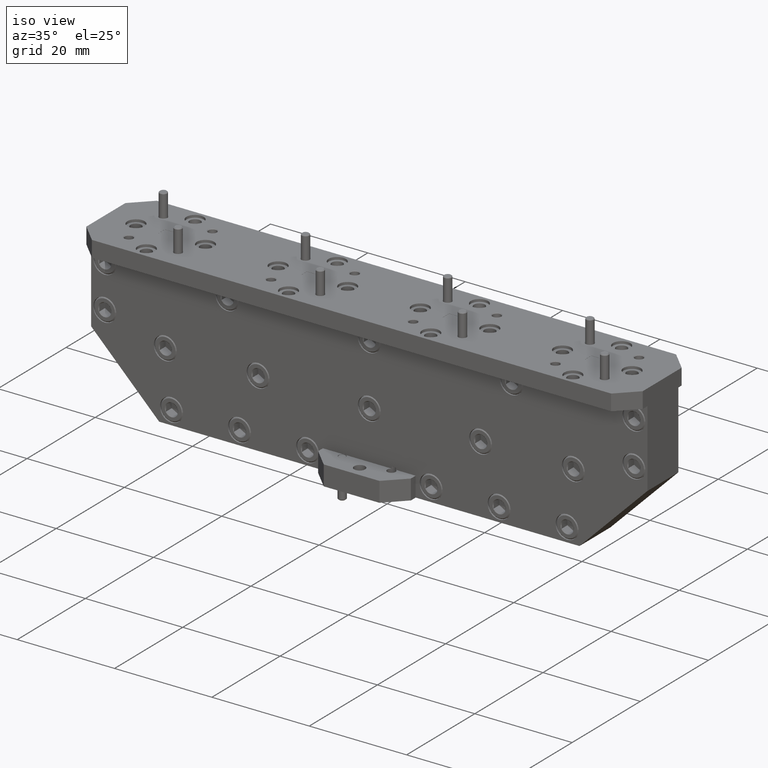
[diagram: clean part render]
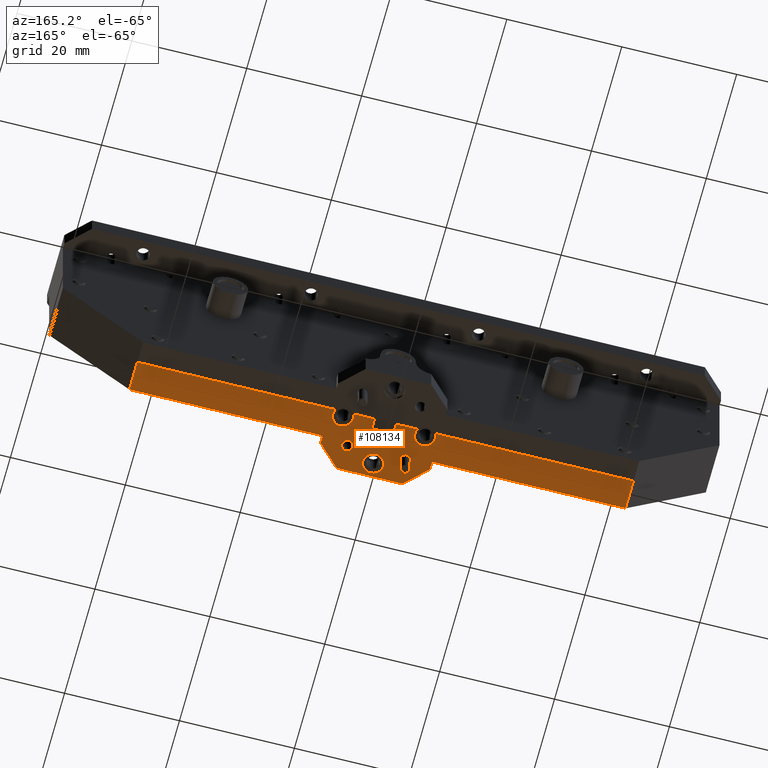
[diagram: tour spotlight — one face highlighted and labeled with its STEP entity id]
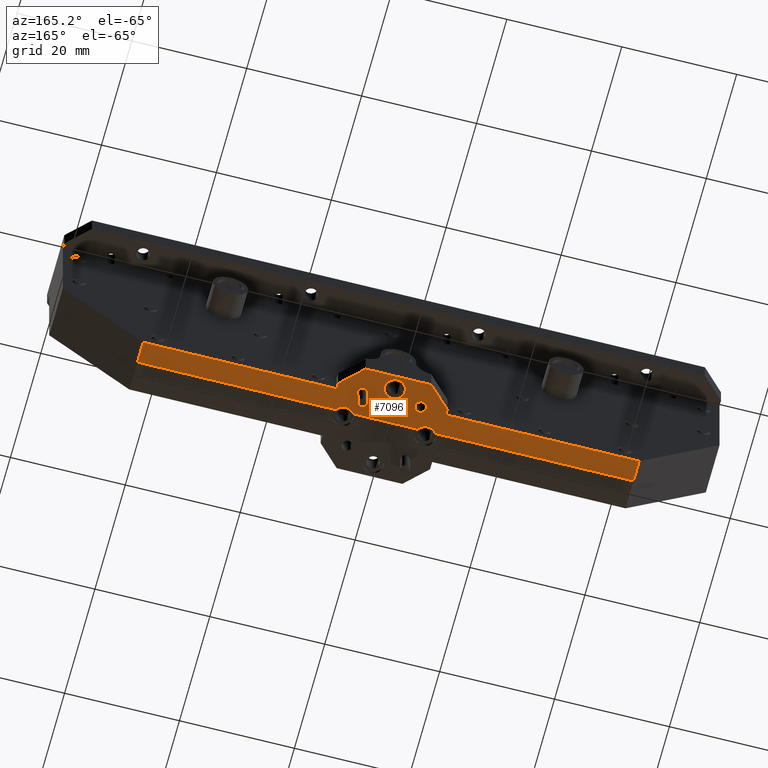
[diagram: tour spotlight — one face highlighted and labeled with its STEP entity id]
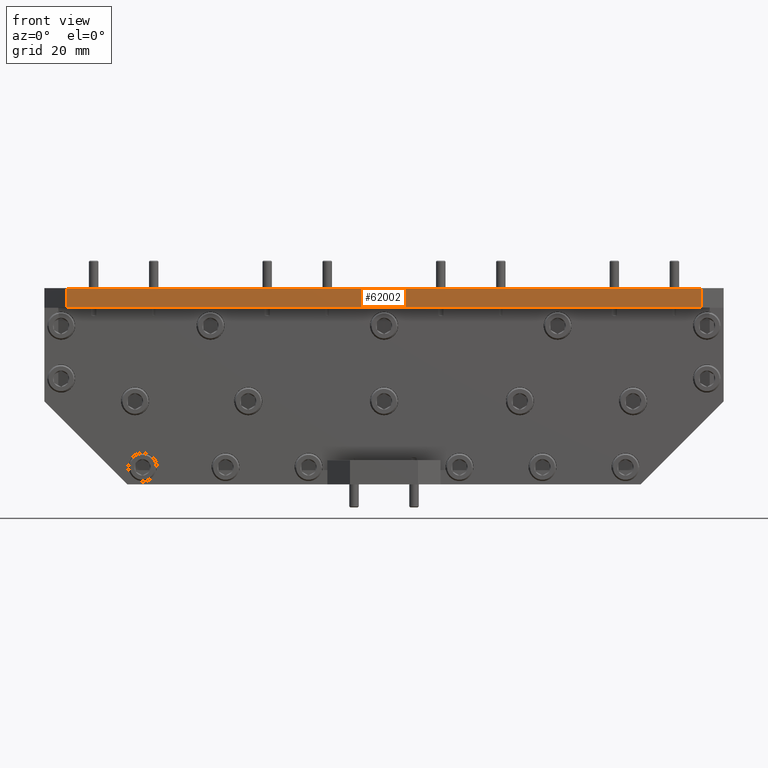
[diagram: tour spotlight — one face highlighted and labeled with its STEP entity id]
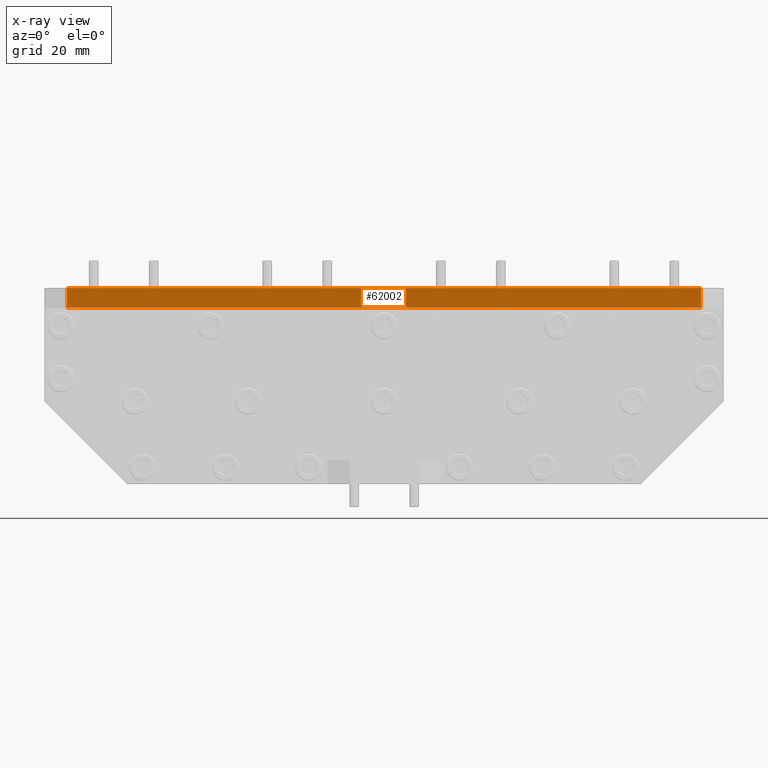
[diagram: x-ray of the same camera — body ghosted, this tour face saturated]
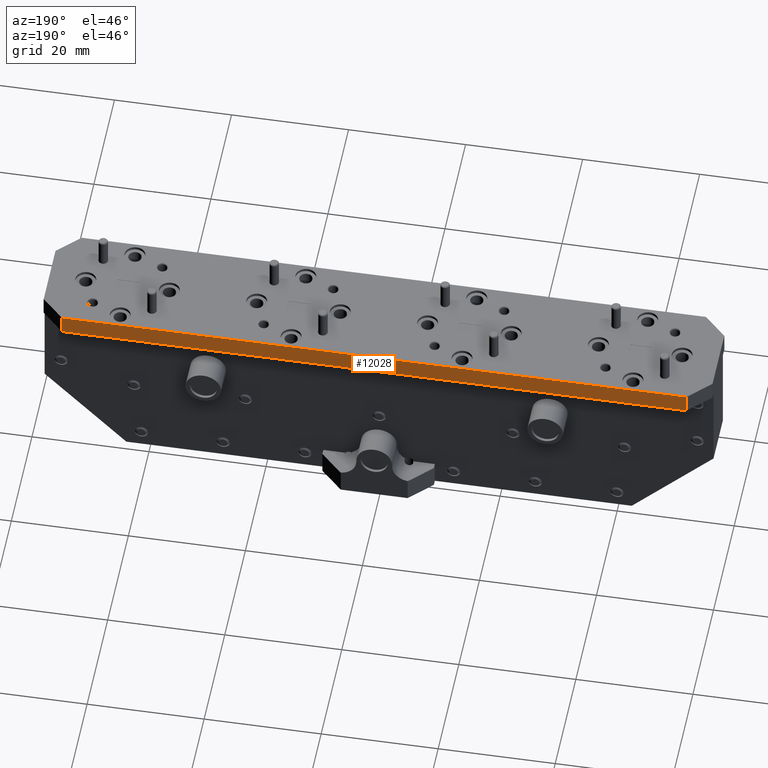
[diagram: tour spotlight — one face highlighted and labeled with its STEP entity id]
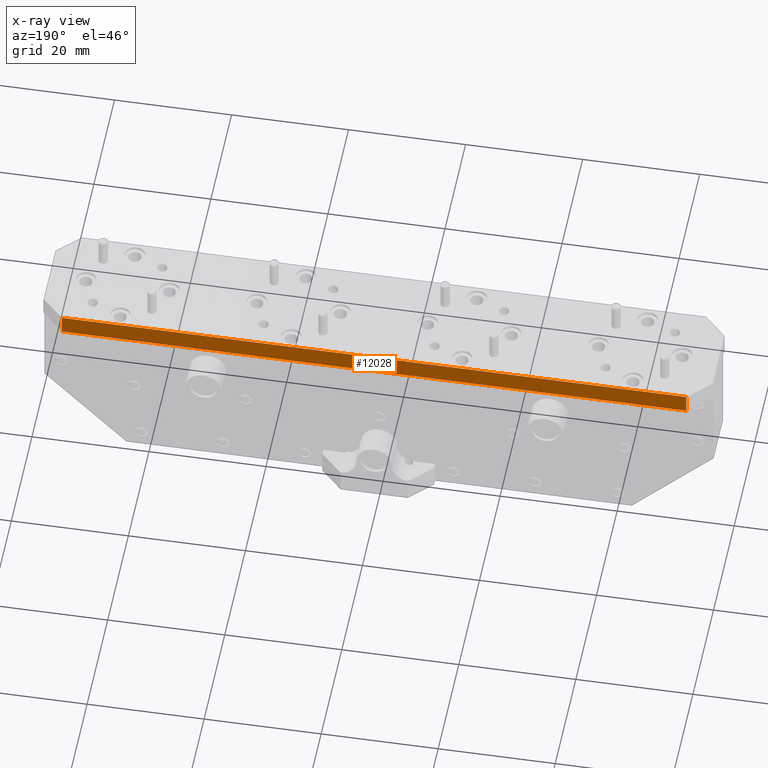
[diagram: x-ray of the same camera — body ghosted, this tour face saturated]
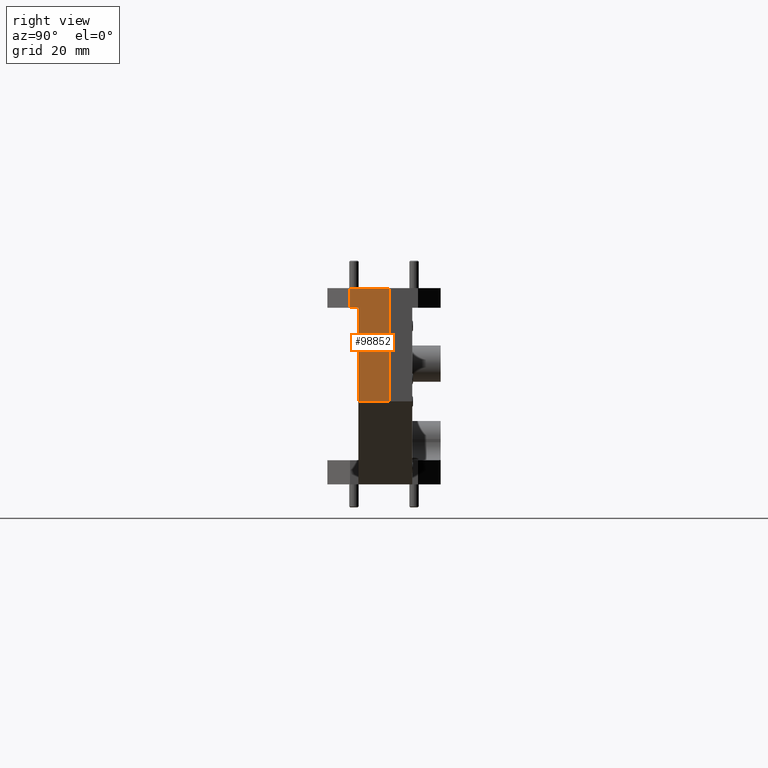
[diagram: tour spotlight — one face highlighted and labeled with its STEP entity id]
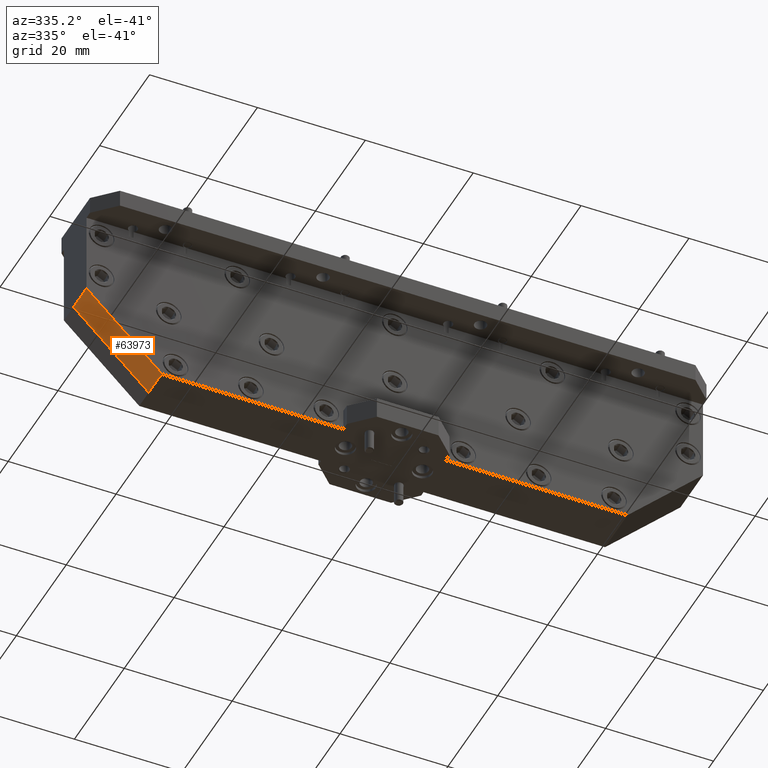
[diagram: tour spotlight — one face highlighted and labeled with its STEP entity id]
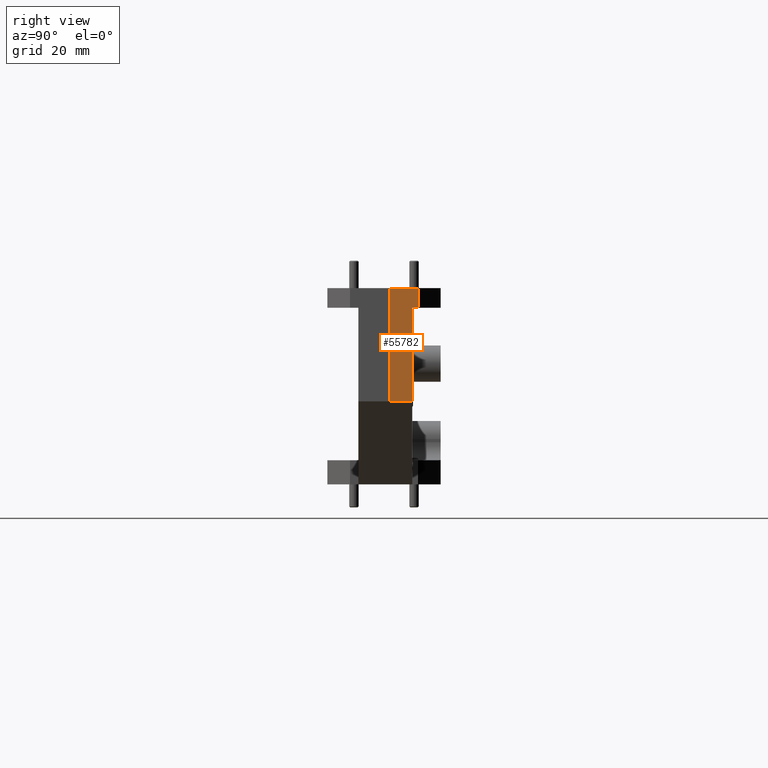
[diagram: tour spotlight — one face highlighted and labeled with its STEP entity id]
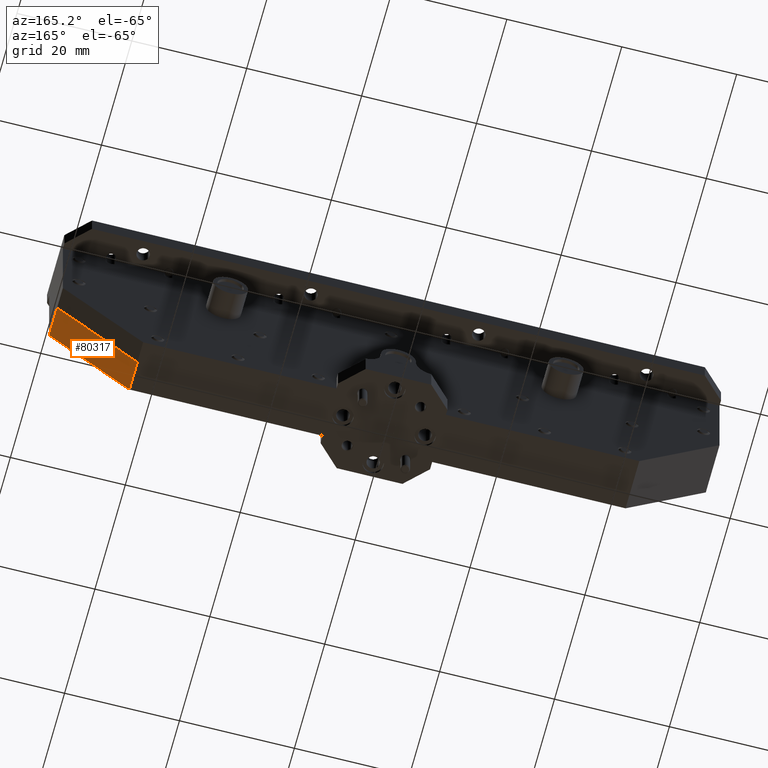
[diagram: tour spotlight — one face highlighted and labeled with its STEP entity id]
A machine part: a face-by-face anatomy tour. The part has 1791 B-rep faces; the first image is the clean iso view, then the 8 largest visible faces are spotlighted one at a time (largest first), each with its STEP entity span.

Face 1 — auxiliary view, entity #108134. In plain terms, the highlighted planar face has unit normal (-0, -0, 1).
Definition (entity closure, byte-faithful):
#56 = ORIENTED_EDGE ( 'NONE', *, *, #88329, .F. ) ;
#1038 = VERTEX_POINT ( 'NONE', #45602 ) ;
#1110 = CARTESIAN_POINT ( 'NONE',  ( 0.1988737822087164600, -0.2358737822087161000, -0.9249999999999999300 ) ) ;
#1271 = VERTEX_POINT ( 'NONE', #10421 ) ;
#1531 = EDGE_CURVE ( 'NONE', #39928, #21347, #11561, .T. ) ;
#1541 = AXIS2_PLACEMENT_3D ( 'NONE', #46778, #104861, #55230 ) ;
#2400 = DIRECTION ( 'NONE',  ( -1.000000000000000000, 0.0000000000000000000, 0.0000000000000000000 ) ) ;
#3276 = CARTESIAN_POINT ( 'NONE',  ( -0.2218277819330179100, -8.537024980200822600E-018, -0.9249999999999999300 ) ) ;
#3802 = ORIENTED_EDGE ( 'NONE', *, *, #63909, .T. ) ;
#3918 = CARTESIAN_POINT ( 'NONE',  ( 1.700000000000001500, -0.2070000000000000500, -0.9249999999999988200 ) ) ;
#4316 = CIRCLE ( 'NONE', #42271, 0.07000000000000000700 ) ;
#4776 = VERTEX_POINT ( 'NONE', #65989 ) ;
#5239 = ORIENTED_EDGE ( 'NONE', *, *, #11001, .F. ) ;
#5979 = CIRCLE ( 'NONE', #29749, 0.07000000000000000700 ) ;
#6198 = LINE ( 'NONE', #38519, #28387 ) ;
#6517 = EDGE_CURVE ( 'NONE', #80452, #67156, #52356, .T. ) ;
#6541 = AXIS2_PLACEMENT_3D ( 'NONE', #93465, #43476, #101691 ) ;
#6553 = VERTEX_POINT ( 'NONE', #106673 ) ;
#7608 = ORIENTED_EDGE ( 'NONE', *, *, #101165, .T. ) ;
#8081 = AXIS2_PLACEMENT_3D ( 'NONE', #66536, #16139, #74926 ) ;
#8324 = CARTESIAN_POINT ( 'NONE',  ( -0.3749999999999995600, -0.4119999999999999800, -0.9249999999999997100 ) ) ;
#8722 = VERTEX_POINT ( 'NONE', #74062 ) ;
#9518 = DIRECTION ( 'NONE',  ( -1.000000000000000000, 0.0000000000000000000, 0.0000000000000000000 ) ) ;
#10185 = CARTESIAN_POINT ( 'NONE',  ( -0.3406722180669825600, -8.537024980200822600E-018, -0.9249999999999999300 ) ) ;
#10336 = DIRECTION ( 'NONE',  ( 1.000000000000000000, -1.387778780781436600E-017, 4.024558464266192500E-016 ) ) ;
#10421 = CARTESIAN_POINT ( 'NONE',  ( -0.1631237822087165700, -0.2358737822087160500, -0.9249999999999999300 ) ) ;
#11001 = EDGE_CURVE ( 'NONE', #8722, #6553, #40555, .T. ) ;
#11330 = VECTOR ( 'NONE', #40522, 39.37007874015748100 ) ;
#11561 = LINE ( 'NONE', #61822, #56192 ) ;
#13583 = CARTESIAN_POINT ( 'NONE',  ( -1.700000000000002200, -0.2069999999999999600, -0.9250000000000002700 ) ) ;
#13883 = AXIS2_PLACEMENT_3D ( 'NONE', #102387, #52622, #2400 ) ;
#13910 = DIRECTION ( 'NONE',  ( -4.024558464266192500E-016, -1.961823310340138400E-032, 1.000000000000000000 ) ) ;
#14035 = VERTEX_POINT ( 'NONE', #63978 ) ;
#14044 = ORIENTED_EDGE ( 'NONE', *, *, #96344, .T. ) ;
#14588 = ORIENTED_EDGE ( 'NONE', *, *, #36158, .F. ) ;
#15280 = VECTOR ( 'NONE', #36386, 39.37007874015748100 ) ;
#16139 = DIRECTION ( 'NONE',  ( 0.0000000000000000000, -4.136336035931921700E-034, -1.000000000000000000 ) ) ;
#16288 = LINE ( 'NONE', #37903, #38526 ) ;
#16436 = LINE ( 'NONE', #56161, #102585 ) ;
#17992 = DIRECTION ( 'NONE',  ( -1.387778780781436600E-017, -1.000000000000000000, -2.759659579148537200E-032 ) ) ;
#19402 = DIRECTION ( 'NONE',  ( 0.0000000000000000000, -3.840883461936786400E-034, -1.000000000000000000 ) ) ;
#20020 = LINE ( 'NONE', #35957, #103554 ) ;
#20064 = CIRCLE ( 'NONE', #1541, 0.03574999999999999000 ) ;
#20585 = EDGE_LOOP ( 'NONE', ( #56, #75506 ) ) ;
#21347 = VERTEX_POINT ( 'NONE', #35773 ) ;
#22091 = ORIENTED_EDGE ( 'NONE', *, *, #105966, .F. ) ;
#22600 = CIRCLE ( 'NONE', #99529, 0.07000000000000000700 ) ;
#22989 = ORIENTED_EDGE ( 'NONE', *, *, #80015, .F. ) ;
#24452 = DIRECTION ( 'NONE',  ( 1.000000000000000000, -1.387778780781436600E-017, 4.024558464266192500E-016 ) ) ;
#24901 = VECTOR ( 'NONE', #17992, 39.37007874015748100 ) ;
#24943 = ORIENTED_EDGE ( 'NONE', *, *, #53024, .F. ) ;
#24997 = VERTEX_POINT ( 'NONE', #80912 ) ;
#25619 = DIRECTION ( 'NONE',  ( 0.0000000000000000000, -1.063629266382489800E-033, -1.000000000000000000 ) ) ;
#26351 = EDGE_CURVE ( 'NONE', #62019, #31402, #22600, .T. ) ;
#26998 = CARTESIAN_POINT ( 'NONE',  ( 0.2812500000000001100, -0.03699999999999999800, -0.9249999999999999300 ) ) ;
#27917 = DIRECTION ( 'NONE',  ( 1.000000000000000000, -1.387778780781436600E-017, 4.024558464266192500E-016 ) ) ;
#28376 = EDGE_CURVE ( 'NONE', #61615, #72224, #55989, .T. ) ;
#28387 = VECTOR ( 'NONE', #55845, 39.37007874015748100 ) ;
#28577 = CARTESIAN_POINT ( 'NONE',  ( 1.700000000000001500, -0.2070000000000000500, -0.9249999999999988200 ) ) ;
#28734 = CARTESIAN_POINT ( 'NONE',  ( 0.3750000000000002800, -0.2070000000000000200, -0.9249999999999993800 ) ) ;
#28861 = ORIENTED_EDGE ( 'NONE', *, *, #6517, .F. ) ;
#29749 = AXIS2_PLACEMENT_3D ( 'NONE', #69867, #19402, #78154 ) ;
#29797 = ORIENTED_EDGE ( 'NONE', *, *, #63544, .F. ) ;
#30026 = VECTOR ( 'NONE', #102206, 39.37007874015748100 ) ;
#30362 = VERTEX_POINT ( 'NONE', #72886 ) ;
#30680 = CARTESIAN_POINT ( 'NONE',  ( 1.700000000000001500, -2.359223927328441900E-017, -0.9249999999999988200 ) ) ;
#31119 = EDGE_CURVE ( 'NONE', #67156, #1038, #101038, .T. ) ;
#31402 = VERTEX_POINT ( 'NONE', #102825 ) ;
#31692 = LINE ( 'NONE', #60606, #51446 ) ;
#32676 = LINE ( 'NONE', #35460, #30026 ) ;
#33350 = DIRECTION ( 'NONE',  ( 0.0000000000000000000, -1.093174523782003400E-033, -1.000000000000000000 ) ) ;
#34545 = LINE ( 'NONE', #74807, #54277 ) ;
#34707 = EDGE_LOOP ( 'NONE', ( #63586, #5239 ) ) ;
#35363 = DIRECTION ( 'NONE',  ( -1.000000000000000000, 0.0000000000000000000, 0.0000000000000000000 ) ) ;
#35460 = CARTESIAN_POINT ( 'NONE',  ( 0.3750000000000002800, -0.4119999999999999800, -0.9249999999999993800 ) ) ;
#35594 = ORIENTED_EDGE ( 'NONE', *, *, #75031, .T. ) ;
#35773 = CARTESIAN_POINT ( 'NONE',  ( -1.700000000000002200, 2.359223927328447400E-017, -0.9250000000000002700 ) ) ;
#35852 = LINE ( 'NONE', #30680, #77936 ) ;
#35878 = DIRECTION ( 'NONE',  ( 0.0000000000000000000, -4.136336035931921700E-034, -1.000000000000000000 ) ) ;
#35957 = CARTESIAN_POINT ( 'NONE',  ( 1.700000000000001500, -0.2070000000000000500, -0.9249999999999988200 ) ) ;
#36158 = EDGE_CURVE ( 'NONE', #1271, #40458, #20064, .T. ) ;
#36323 = CARTESIAN_POINT ( 'NONE',  ( -0.2112500000000002400, -0.03699999999999999100, -0.9249999999999999300 ) ) ;
#36386 = DIRECTION ( 'NONE',  ( 1.387778780781436600E-017, 1.000000000000000000, 2.759659579148537200E-032 ) ) ;
#36467 = EDGE_CURVE ( 'NONE', #84775, #62019, #4316, .T. ) ;
#36528 = CARTESIAN_POINT ( 'NONE',  ( 0.07400000000000019100, -0.07399999999999999600, -0.9249999999999996000 ) ) ;
#37903 = CARTESIAN_POINT ( 'NONE',  ( 0.3750000000000002800, -0.2619999999999996800, -0.9249999999999993800 ) ) ;
#38005 = EDGE_CURVE ( 'NONE', #24997, #14035, #59988, .T. ) ;
#38519 = CARTESIAN_POINT ( 'NONE',  ( 1.700000000000001500, -2.359223927328441900E-017, -0.9249999999999988200 ) ) ;
#38526 = VECTOR ( 'NONE', #88039, 39.37007874015748100 ) ;
#39039 = ORIENTED_EDGE ( 'NONE', *, *, #31119, .F. ) ;
#39928 = VERTEX_POINT ( 'NONE', #13583 ) ;
#40458 = VERTEX_POINT ( 'NONE', #107085 ) ;
#40522 = DIRECTION ( 'NONE',  ( 1.000000000000000000, -1.387778780781436600E-017, 4.024558464266192500E-016 ) ) ;
#40555 = CIRCLE ( 'NONE', #56924, 0.03849999999999997900 ) ;
#41079 = ORIENTED_EDGE ( 'NONE', *, *, #57598, .F. ) ;
#41614 = ORIENTED_EDGE ( 'NONE', *, *, #1531, .T. ) ;
#41814 = VERTEX_POINT ( 'NONE', #50983 ) ;
#41822 = EDGE_CURVE ( 'NONE', #30362, #24997, #63345, .T. ) ;
#41926 = ORIENTED_EDGE ( 'NONE', *, *, #36467, .F. ) ;
#42271 = AXIS2_PLACEMENT_3D ( 'NONE', #93736, #43747, #101983 ) ;
#42902 = ORIENTED_EDGE ( 'NONE', *, *, #84256, .T. ) ;
#43476 = DIRECTION ( 'NONE',  ( 0.0000000000000000000, -4.431788609927057000E-034, -1.000000000000000000 ) ) ;
#43540 = CARTESIAN_POINT ( 'NONE',  ( -0.07399999999999966300, 1.915172892515911000E-017, -0.9249999999999996000 ) ) ;
#43747 = DIRECTION ( 'NONE',  ( 0.0000000000000000000, -3.840883461936786400E-034, -1.000000000000000000 ) ) ;
#43831 = VECTOR ( 'NONE', #85451, 39.37007874015748100 ) ;
#43849 = CIRCLE ( 'NONE', #64855, 0.07000000000000000700 ) ;
#44392 = VERTEX_POINT ( 'NONE', #88803 ) ;
#44874 = CARTESIAN_POINT ( 'NONE',  ( -0.3749999999999995600, -0.4119999999999999800, -0.9249999999999997100 ) ) ;
#44914 = ORIENTED_EDGE ( 'NONE', *, *, #38005, .T. ) ;
#45338 = ORIENTED_EDGE ( 'NONE', *, *, #87705, .F. ) ;
#45482 = CARTESIAN_POINT ( 'NONE',  ( 0.06999999999999992300, -0.3182500000000000900, -0.9249999999999999300 ) ) ;
#45602 = CARTESIAN_POINT ( 'NONE',  ( -0.3512500000000002300, -0.03699999999999999800, -0.9249999999999999300 ) ) ;
#45736 = VERTEX_POINT ( 'NONE', #54147 ) ;
#45755 = ORIENTED_EDGE ( 'NONE', *, *, #26351, .F. ) ;
#46778 = CARTESIAN_POINT ( 'NONE',  ( -0.1988737822087165400, -0.2358737822087160500, -0.9249999999999999300 ) ) ;
#48024 = DIRECTION ( 'NONE',  ( -1.000000000000000000, 1.387778780781436600E-017, -4.024558464266192500E-016 ) ) ;
#49147 = CARTESIAN_POINT ( 'NONE',  ( 0.3512500000000001200, -0.03699999999999999100, -0.9249999999999999300 ) ) ;
#50011 = AXIS2_PLACEMENT_3D ( 'NONE', #68108, #67873, #67532 ) ;
#50983 = CARTESIAN_POINT ( 'NONE',  ( 0.2218277819330178000, -1.280553747030123400E-017, -0.9249999999999999300 ) ) ;
#51446 = VECTOR ( 'NONE', #10336, 39.37007874015748100 ) ;
#52356 = CIRCLE ( 'NONE', #50011, 0.07000000000000000700 ) ;
#52622 = DIRECTION ( 'NONE',  ( 0.0000000000000000000, -4.431788609927057000E-034, -1.000000000000000000 ) ) ;
#52699 = EDGE_CURVE ( 'NONE', #21347, #68994, #6198, .T. ) ;
#53022 = CIRCLE ( 'NONE', #104504, 0.03849999999999997900 ) ;
#53024 = EDGE_CURVE ( 'NONE', #31402, #41814, #5979, .T. ) ;
#54147 = CARTESIAN_POINT ( 'NONE',  ( 0.3750000000000002800, -0.2619999999999996800, -0.9249999999999993800 ) ) ;
#54277 = VECTOR ( 'NONE', #24452, 39.37007874015748100 ) ;
#54654 = EDGE_CURVE ( 'NONE', #79008, #105657, #88987, .T. ) ;
#55146 = FACE_BOUND ( 'NONE', #34707, .T. ) ;
#55230 = DIRECTION ( 'NONE',  ( -1.000000000000000000, 0.0000000000000000000, 0.0000000000000000000 ) ) ;
#55845 = DIRECTION ( 'NONE',  ( 1.000000000000000000, -1.387778780781436600E-017, 4.024558464266192500E-016 ) ) ;
#55989 = LINE ( 'NONE', #90627, #11330 ) ;
#56161 = CARTESIAN_POINT ( 'NONE',  ( 0.07400000000000034300, -0.07399999999999999600, -0.9249999999999996000 ) ) ;
#56192 = VECTOR ( 'NONE', #64259, 39.37007874015748100 ) ;
#56924 = AXIS2_PLACEMENT_3D ( 'NONE', #75923, #25619, #84211 ) ;
#57482 = ORIENTED_EDGE ( 'NONE', *, *, #28376, .F. ) ;
#57598 = EDGE_CURVE ( 'NONE', #40458, #1271, #103488, .T. ) ;
#58269 = EDGE_CURVE ( 'NONE', #72224, #44392, #105786, .T. ) ;
#59090 = DIRECTION ( 'NONE',  ( -0.7071067811865486800, 0.7071067811865462400, -2.845792581364347000E-016 ) ) ;
#59799 = DIRECTION ( 'NONE',  ( 0.0000000000000000000, -1.063629266382489800E-033, -1.000000000000000000 ) ) ;
#59988 = LINE ( 'NONE', #44874, #15280 ) ;
#60349 = VERTEX_POINT ( 'NONE', #68358 ) ;
#60606 = CARTESIAN_POINT ( 'NONE',  ( 1.700000000000001500, -2.359223927328441900E-017, -0.9249999999999988200 ) ) ;
#61615 = VERTEX_POINT ( 'NONE', #28734 ) ;
#61822 = CARTESIAN_POINT ( 'NONE',  ( -1.700000000000002200, -0.2069999999999999600, -0.9250000000000002700 ) ) ;
#62019 = VERTEX_POINT ( 'NONE', #49147 ) ;
#63256 = LINE ( 'NONE', #8324, #107195 ) ;
#63345 = LINE ( 'NONE', #100777, #104684 ) ;
#63544 = EDGE_CURVE ( 'NONE', #1038, #68994, #88046, .T. ) ;
#63586 = ORIENTED_EDGE ( 'NONE', *, *, #105459, .F. ) ;
#63687 = CARTESIAN_POINT ( 'NONE',  ( 0.2249999999999995300, -0.4119999999999999800, -0.9249999999999993800 ) ) ;
#63699 = ORIENTED_EDGE ( 'NONE', *, *, #52699, .T. ) ;
#63909 = EDGE_CURVE ( 'NONE', #79008, #41814, #31692, .T. ) ;
#63978 = CARTESIAN_POINT ( 'NONE',  ( -0.3749999999999996100, -0.2070000000000000200, -0.9249999999999997100 ) ) ;
#64259 = DIRECTION ( 'NONE',  ( 1.387778780781436600E-017, 1.000000000000000000, 2.759659579148537200E-032 ) ) ;
#64297 = CARTESIAN_POINT ( 'NONE',  ( 1.700000000000001500, -0.2070000000000000500, -0.9249999999999988200 ) ) ;
#64414 = VERTEX_POINT ( 'NONE', #63687 ) ;
#64855 = AXIS2_PLACEMENT_3D ( 'NONE', #86027, #35878, #94329 ) ;
#65989 = CARTESIAN_POINT ( 'NONE',  ( -0.07399999999999966300, -0.07399999999999998200, -0.9249999999999996000 ) ) ;
#66536 = CARTESIAN_POINT ( 'NONE',  ( -7.432233512174843300E-017, -0.3182500000000000900, -0.9249999999999999300 ) ) ;
#67156 = VERTEX_POINT ( 'NONE', #36323 ) ;
#67532 = DIRECTION ( 'NONE',  ( -1.000000000000000000, 0.0000000000000000000, 0.0000000000000000000 ) ) ;
#67873 = DIRECTION ( 'NONE',  ( 0.0000000000000000000, -4.431788609927057000E-034, -1.000000000000000000 ) ) ;
#68108 = CARTESIAN_POINT ( 'NONE',  ( -0.2812500000000002200, -0.03699999999999999800, -0.9249999999999999300 ) ) ;
#68358 = CARTESIAN_POINT ( 'NONE',  ( -0.07000000000000007600, -0.3182500000000000900, -0.9249999999999999300 ) ) ;
#68443 = CARTESIAN_POINT ( 'NONE',  ( 0.07400000000000034300, -1.026956297778243400E-018, -0.9249999999999996000 ) ) ;
#68994 = VERTEX_POINT ( 'NONE', #10185 ) ;
#69867 = CARTESIAN_POINT ( 'NONE',  ( 0.2812500000000001100, -0.03699999999999999800, -0.9249999999999999300 ) ) ;
#70328 = CARTESIAN_POINT ( 'NONE',  ( -0.07399999999999966300, 1.915172892515911000E-017, -0.9249999999999996000 ) ) ;
#70950 = CIRCLE ( 'NONE', #8081, 0.07000000000000000700 ) ;
#72224 = VERTEX_POINT ( 'NONE', #28577 ) ;
#72745 = DIRECTION ( 'NONE',  ( -1.000000000000000000, 1.387778780781436600E-017, -4.024558464266192500E-016 ) ) ;
#72886 = CARTESIAN_POINT ( 'NONE',  ( -0.2249999999999992300, -0.4119999999999999800, -0.9249999999999997100 ) ) ;
#74062 = CARTESIAN_POINT ( 'NONE',  ( 0.2373737822087164400, -0.2358737822087161000, -0.9249999999999999300 ) ) ;
#74414 = CARTESIAN_POINT ( 'NONE',  ( 0.07400000000000034300, -1.026956297778243400E-018, -0.9249999999999996000 ) ) ;
#74517 = AXIS2_PLACEMENT_3D ( 'NONE', #64297, #13910, #72745 ) ;
#74807 = CARTESIAN_POINT ( 'NONE',  ( 1.700000000000001500, -2.359223927328441900E-017, -0.9249999999999988200 ) ) ;
#74926 = DIRECTION ( 'NONE',  ( -1.000000000000000000, 0.0000000000000000000, 0.0000000000000000000 ) ) ;
#75031 = EDGE_CURVE ( 'NONE', #45736, #64414, #16288, .T. ) ;
#75506 = ORIENTED_EDGE ( 'NONE', *, *, #90752, .F. ) ;
#75923 = CARTESIAN_POINT ( 'NONE',  ( 0.1988737822087164600, -0.2358737822087161000, -0.9249999999999999300 ) ) ;
#77482 = ORIENTED_EDGE ( 'NONE', *, *, #41822, .T. ) ;
#77503 = FACE_OUTER_BOUND ( 'NONE', #77518, .T. ) ;
#77518 = EDGE_LOOP ( 'NONE', ( #3802, #24943, #45755, #41926, #14044, #95805, #57482, #84710, #35594, #7608, #77482, #44914, #22091, #41614, #63699, #29797, #39039, #28861, #42902, #45338, #22989, #88674 ) ) ;
#77936 = VECTOR ( 'NONE', #97459, 39.37007874015748100 ) ;
#78154 = DIRECTION ( 'NONE',  ( -1.000000000000000000, 0.0000000000000000000, 0.0000000000000000000 ) ) ;
#79008 = VERTEX_POINT ( 'NONE', #74414 ) ;
#80015 = EDGE_CURVE ( 'NONE', #105657, #4776, #16436, .T. ) ;
#80307 = PLANE ( 'NONE',  #74517 ) ;
#80452 = VERTEX_POINT ( 'NONE', #3276 ) ;
#80912 = CARTESIAN_POINT ( 'NONE',  ( -0.3749999999999995600, -0.2620000000000002300, -0.9249999999999997100 ) ) ;
#82618 = AXIS2_PLACEMENT_3D ( 'NONE', #83579, #33350, #91883 ) ;
#82638 = FACE_BOUND ( 'NONE', #20585, .T. ) ;
#83579 = CARTESIAN_POINT ( 'NONE',  ( -0.1988737822087165400, -0.2358737822087160500, -0.9249999999999999300 ) ) ;
#83994 = VECTOR ( 'NONE', #87656, 39.37007874015748100 ) ;
#84211 = DIRECTION ( 'NONE',  ( -1.000000000000000000, 0.0000000000000000000, 0.0000000000000000000 ) ) ;
#84256 = EDGE_CURVE ( 'NONE', #80452, #102694, #34545, .T. ) ;
#84710 = ORIENTED_EDGE ( 'NONE', *, *, #90955, .F. ) ;
#84775 = VERTEX_POINT ( 'NONE', #99990 ) ;
#85451 = DIRECTION ( 'NONE',  ( 1.387778780781436600E-017, 1.000000000000000000, 2.759659579148537200E-032 ) ) ;
#85555 = DIRECTION ( 'NONE',  ( 0.0000000000000000000, -3.840883461936786400E-034, -1.000000000000000000 ) ) ;
#86027 = CARTESIAN_POINT ( 'NONE',  ( -7.432233512174843300E-017, -0.3182500000000000900, -0.9249999999999999300 ) ) ;
#87656 = DIRECTION ( 'NONE',  ( 1.387778780781436600E-017, 1.000000000000000000, 2.759659579148537200E-032 ) ) ;
#87705 = EDGE_CURVE ( 'NONE', #4776, #102694, #88241, .T. ) ;
#88039 = DIRECTION ( 'NONE',  ( -0.7071067811865487900, -0.7071067811865462400, -2.845792581364347500E-016 ) ) ;
#88046 = CIRCLE ( 'NONE', #13883, 0.07000000000000000700 ) ;
#88241 = LINE ( 'NONE', #70328, #43831 ) ;
#88329 = EDGE_CURVE ( 'NONE', #60349, #93205, #43849, .T. ) ;
#88674 = ORIENTED_EDGE ( 'NONE', *, *, #54654, .F. ) ;
#88803 = CARTESIAN_POINT ( 'NONE',  ( 1.700000000000001500, -2.359223927328441900E-017, -0.9249999999999988200 ) ) ;
#88987 = LINE ( 'NONE', #68443, #24901 ) ;
#90627 = CARTESIAN_POINT ( 'NONE',  ( 1.700000000000001500, -0.2070000000000000500, -0.9249999999999988200 ) ) ;
#90752 = EDGE_CURVE ( 'NONE', #93205, #60349, #70950, .T. ) ;
#90955 = EDGE_CURVE ( 'NONE', #45736, #61615, #32676, .T. ) ;
#91883 = DIRECTION ( 'NONE',  ( -1.000000000000000000, 0.0000000000000000000, 0.0000000000000000000 ) ) ;
#93205 = VERTEX_POINT ( 'NONE', #45482 ) ;
#93465 = CARTESIAN_POINT ( 'NONE',  ( -0.2812500000000002200, -0.03699999999999999800, -0.9249999999999999300 ) ) ;
#93736 = CARTESIAN_POINT ( 'NONE',  ( 0.2812500000000001100, -0.03699999999999999800, -0.9249999999999999300 ) ) ;
#94329 = DIRECTION ( 'NONE',  ( -1.000000000000000000, 0.0000000000000000000, 0.0000000000000000000 ) ) ;
#95805 = ORIENTED_EDGE ( 'NONE', *, *, #58269, .F. ) ;
#96344 = EDGE_CURVE ( 'NONE', #84775, #44392, #35852, .T. ) ;
#97459 = DIRECTION ( 'NONE',  ( 1.000000000000000000, -1.387778780781436600E-017, 4.024558464266192500E-016 ) ) ;
#98120 = EDGE_LOOP ( 'NONE', ( #41079, #14588 ) ) ;
#99336 = FACE_BOUND ( 'NONE', #98120, .T. ) ;
#99529 = AXIS2_PLACEMENT_3D ( 'NONE', #26998, #85555, #35363 ) ;
#99990 = CARTESIAN_POINT ( 'NONE',  ( 0.3406722180669824500, -1.280553747030123400E-017, -0.9249999999999999300 ) ) ;
#100777 = CARTESIAN_POINT ( 'NONE',  ( -0.3749999999999995600, -0.2620000000000002300, -0.9249999999999997100 ) ) ;
#101038 = CIRCLE ( 'NONE', #6541, 0.07000000000000000700 ) ;
#101165 = EDGE_CURVE ( 'NONE', #64414, #30362, #63256, .T. ) ;
#101691 = DIRECTION ( 'NONE',  ( -1.000000000000000000, 0.0000000000000000000, 0.0000000000000000000 ) ) ;
#101983 = DIRECTION ( 'NONE',  ( -1.000000000000000000, 0.0000000000000000000, 0.0000000000000000000 ) ) ;
#102206 = DIRECTION ( 'NONE',  ( 1.387778780781436600E-017, 1.000000000000000000, 2.759659579148537200E-032 ) ) ;
#102387 = CARTESIAN_POINT ( 'NONE',  ( -0.2812500000000002200, -0.03699999999999999800, -0.9249999999999999300 ) ) ;
#102585 = VECTOR ( 'NONE', #106462, 39.37007874015748100 ) ;
#102694 = VERTEX_POINT ( 'NONE', #43540 ) ;
#102825 = CARTESIAN_POINT ( 'NONE',  ( 0.2112500000000001000, -0.03699999999999999800, -0.9249999999999999300 ) ) ;
#103488 = CIRCLE ( 'NONE', #82618, 0.03574999999999999000 ) ;
#103554 = VECTOR ( 'NONE', #27917, 39.37007874015748100 ) ;
#104504 = AXIS2_PLACEMENT_3D ( 'NONE', #1110, #59799, #9518 ) ;
#104684 = VECTOR ( 'NONE', #59090, 39.37007874015748900 ) ;
#104861 = DIRECTION ( 'NONE',  ( 0.0000000000000000000, -1.093174523782003400E-033, -1.000000000000000000 ) ) ;
#105459 = EDGE_CURVE ( 'NONE', #6553, #8722, #53022, .T. ) ;
#105657 = VERTEX_POINT ( 'NONE', #36528 ) ;
#105786 = LINE ( 'NONE', #3918, #83994 ) ;
#105966 = EDGE_CURVE ( 'NONE', #39928, #14035, #20020, .T. ) ;
#106462 = DIRECTION ( 'NONE',  ( -1.000000000000000000, 1.292429902429606100E-016, -4.024558464266192500E-016 ) ) ;
#106673 = CARTESIAN_POINT ( 'NONE',  ( 0.1603737822087164800, -0.2358737822087161000, -0.9249999999999999300 ) ) ;
#107085 = CARTESIAN_POINT ( 'NONE',  ( -0.2346237822087165500, -0.2358737822087160500, -0.9249999999999999300 ) ) ;
#107195 = VECTOR ( 'NONE', #48024, 39.37007874015748100 ) ;
#108134 = ADVANCED_FACE ( 'NONE', ( #82638, #55146, #99336, #77503 ), #80307, .F. ) ;

Face 2 — auxiliary view, entity #7096. In plain terms, the highlighted planar face has unit normal (0, -0, 1).
Definition (entity closure, byte-faithful):
#201 = ORIENTED_EDGE ( 'NONE', *, *, #35938, .F. ) ;
#753 = VECTOR ( 'NONE', #8675, 39.37007874015748100 ) ;
#859 = AXIS2_PLACEMENT_3D ( 'NONE', #5399, #64120, #13740 ) ;
#949 = FACE_OUTER_BOUND ( 'NONE', #2909, .T. ) ;
#1597 = CARTESIAN_POINT ( 'NONE',  ( -1.699999999999997500, 0.0000000000000000000, -0.9249999999999998200 ) ) ;
#2020 = LINE ( 'NONE', #25621, #24260 ) ;
#2303 = EDGE_CURVE ( 'NONE', #14343, #99666, #32121, .T. ) ;
#2909 = EDGE_LOOP ( 'NONE', ( #6295, #10259, #44258, #201, #52751, #104154, #62798, #40699, #12243, #100135, #100289, #70660, #96462, #76370 ) ) ;
#3753 = EDGE_CURVE ( 'NONE', #24399, #76059, #36647, .T. ) ;
#3968 = CARTESIAN_POINT ( 'NONE',  ( -0.1603737822087165400, 0.1618737822087169300, -0.9249999999999999300 ) ) ;
#4057 = VERTEX_POINT ( 'NONE', #20461 ) ;
#4534 = VECTOR ( 'NONE', #19867, 39.37007874015748100 ) ;
#5399 = CARTESIAN_POINT ( 'NONE',  ( 0.1988737822087164000, 0.1618737822087168700, -0.9249999999999999300 ) ) ;
#6295 = ORIENTED_EDGE ( 'NONE', *, *, #82363, .T. ) ;
#7096 = ADVANCED_FACE ( 'NONE', ( #65294, #25821, #48176, #949 ), #35725, .F. ) ;
#7221 = DIRECTION ( 'NONE',  ( 0.0000000000000000000, -1.000000000000000000, 0.0000000000000000000 ) ) ;
#8021 = CIRCLE ( 'NONE', #80479, 0.03574999999999999000 ) ;
#8675 = DIRECTION ( 'NONE',  ( -1.000000000000000000, -0.0000000000000000000, 8.034847040189021100E-017 ) ) ;
#9913 = VECTOR ( 'NONE', #54416, 39.37007874015748100 ) ;
#10016 = EDGE_CURVE ( 'NONE', #36665, #99666, #79938, .T. ) ;
#10019 = CARTESIAN_POINT ( 'NONE',  ( -0.07000000000000007600, 0.2442499999999999900, -0.9249999999999999300 ) ) ;
#10121 = CARTESIAN_POINT ( 'NONE',  ( -0.2249999999999999200, 0.3380000000000000800, -0.9250000000000001600 ) ) ;
#10259 = ORIENTED_EDGE ( 'NONE', *, *, #3753, .F. ) ;
#10455 = DIRECTION ( 'NONE',  ( -0.0000000000000000000, -0.0000000000000000000, -1.000000000000000000 ) ) ;
#11498 = CARTESIAN_POINT ( 'NONE',  ( 0.3749999999999996700, 0.3380000000000000800, -0.9249999999999999300 ) ) ;
#11828 = CIRCLE ( 'NONE', #76781, 0.07000000000000000700 ) ;
#12243 = ORIENTED_EDGE ( 'NONE', *, *, #81583, .T. ) ;
#12534 = CARTESIAN_POINT ( 'NONE',  ( -0.1988737822087165400, 0.1618737822087169300, -0.9249999999999999300 ) ) ;
#12825 = VECTOR ( 'NONE', #7221, 39.37007874015748100 ) ;
#13009 = VECTOR ( 'NONE', #33846, 39.37007874015748100 ) ;
#13740 = DIRECTION ( 'NONE',  ( -1.000000000000000000, 0.0000000000000000000, 0.0000000000000000000 ) ) ;
#14343 = VERTEX_POINT ( 'NONE', #94937 ) ;
#14500 = DIRECTION ( 'NONE',  ( -0.0000000000000000000, -0.0000000000000000000, -1.000000000000000000 ) ) ;
#16733 = LINE ( 'NONE', #92132, #81004 ) ;
#16909 = VERTEX_POINT ( 'NONE', #91184 ) ;
#19027 = DIRECTION ( 'NONE',  ( 0.7071067811865487900, 0.7071067811865462400, -5.681494827914327500E-017 ) ) ;
#19324 = CARTESIAN_POINT ( 'NONE',  ( 0.3749999999999996700, 0.3380000000000000800, -0.9249999999999999300 ) ) ;
#19683 = LINE ( 'NONE', #44538, #105754 ) ;
#19867 = DIRECTION ( 'NONE',  ( 0.0000000000000000000, -1.000000000000000000, 0.0000000000000000000 ) ) ;
#19870 = EDGE_CURVE ( 'NONE', #83217, #88969, #24553, .T. ) ;
#20175 = LINE ( 'NONE', #31288, #64971 ) ;
#20305 = DIRECTION ( 'NONE',  ( -1.000000000000000000, -0.0000000000000000000, 8.034847040189021100E-017 ) ) ;
#20461 = CARTESIAN_POINT ( 'NONE',  ( 1.699999999999998200, 0.1499999999999999900, -0.9250000000000001600 ) ) ;
#20664 = ORIENTED_EDGE ( 'NONE', *, *, #65020, .F. ) ;
#20899 = DIRECTION ( 'NONE',  ( -1.000000000000000000, 0.0000000000000000000, 0.0000000000000000000 ) ) ;
#23399 = VERTEX_POINT ( 'NONE', #10019 ) ;
#24260 = VECTOR ( 'NONE', #75924, 39.37007874015748900 ) ;
#24399 = VERTEX_POINT ( 'NONE', #59672 ) ;
#24466 = EDGE_CURVE ( 'NONE', #87636, #36665, #19683, .T. ) ;
#24553 = CIRCLE ( 'NONE', #61568, 0.03850000000000001300 ) ;
#24655 = ORIENTED_EDGE ( 'NONE', *, *, #19870, .F. ) ;
#25621 = CARTESIAN_POINT ( 'NONE',  ( 0.3749999999999996700, 0.1880000000000002800, -0.9249999999999999300 ) ) ;
#25821 = FACE_BOUND ( 'NONE', #37669, .T. ) ;
#27199 = LINE ( 'NONE', #79040, #49564 ) ;
#27998 = DIRECTION ( 'NONE',  ( -1.000000000000000000, -0.0000000000000000000, 8.034847040189021100E-017 ) ) ;
#28576 = AXIS2_PLACEMENT_3D ( 'NONE', #93791, #43798, #102039 ) ;
#29712 = CARTESIAN_POINT ( 'NONE',  ( -1.699999999999997500, 0.1499999999999999900, -0.9249999999999998200 ) ) ;
#30317 = AXIS2_PLACEMENT_3D ( 'NONE', #43246, #43491, #44707 ) ;
#31288 = CARTESIAN_POINT ( 'NONE',  ( 1.699999999999998200, 0.1499999999999999900, -0.9250000000000001600 ) ) ;
#31917 = VECTOR ( 'NONE', #78069, 39.37007874015748100 ) ;
#31983 = ORIENTED_EDGE ( 'NONE', *, *, #34147, .F. ) ;
#32121 = LINE ( 'NONE', #70579, #9913 ) ;
#32554 = VERTEX_POINT ( 'NONE', #38789 ) ;
#33210 = EDGE_CURVE ( 'NONE', #73253, #51904, #8021, .T. ) ;
#33846 = DIRECTION ( 'NONE',  ( -0.0000000000000000000, -1.000000000000000000, -0.0000000000000000000 ) ) ;
#34147 = EDGE_CURVE ( 'NONE', #74884, #23399, #101580, .T. ) ;
#35145 = CARTESIAN_POINT ( 'NONE',  ( -0.2812500000000002200, -0.03699999999999999800, -0.9249999999999999300 ) ) ;
#35725 = PLANE ( 'NONE',  #30317 ) ;
#35938 = EDGE_CURVE ( 'NONE', #14343, #67118, #101153, .T. ) ;
#36226 = CARTESIAN_POINT ( 'NONE',  ( -0.3750000000000002200, 0.1880000000000002800, -0.9249999999999999300 ) ) ;
#36468 = CARTESIAN_POINT ( 'NONE',  ( -7.432233512174843300E-017, 0.2442499999999999900, -0.9249999999999999300 ) ) ;
#36590 = EDGE_CURVE ( 'NONE', #88969, #83217, #93139, .T. ) ;
#36647 = CIRCLE ( 'NONE', #104446, 0.07000000000000000700 ) ;
#36665 = VERTEX_POINT ( 'NONE', #29712 ) ;
#37669 = EDGE_LOOP ( 'NONE', ( #24655, #74641 ) ) ;
#38789 = CARTESIAN_POINT ( 'NONE',  ( 1.699999999999998200, 0.0000000000000000000, -0.9250000000000001600 ) ) ;
#40699 = ORIENTED_EDGE ( 'NONE', *, *, #51438, .F. ) ;
#42099 = DIRECTION ( 'NONE',  ( -1.000000000000000000, -0.0000000000000000000, 8.034847040189021100E-017 ) ) ;
#43205 = LINE ( 'NONE', #36226, #106874 ) ;
#43246 = CARTESIAN_POINT ( 'NONE',  ( -1.699999999999997500, 0.1499999999999999900, -0.9249999999999998200 ) ) ;
#43260 = CARTESIAN_POINT ( 'NONE',  ( 0.3406722180669824500, 0.0000000000000000000, -0.9249999999999999300 ) ) ;
#43491 = DIRECTION ( 'NONE',  ( 8.034847040189021100E-017, -0.0000000000000000000, 1.000000000000000000 ) ) ;
#43655 = DIRECTION ( 'NONE',  ( -1.000000000000000000, 0.0000000000000000000, 0.0000000000000000000 ) ) ;
#43798 = DIRECTION ( 'NONE',  ( 0.0000000000000000000, 0.0000000000000000000, -1.000000000000000000 ) ) ;
#44258 = ORIENTED_EDGE ( 'NONE', *, *, #62106, .T. ) ;
#44538 = CARTESIAN_POINT ( 'NONE',  ( -1.699999999999997500, 0.1499999999999999900, -0.9249999999999998200 ) ) ;
#44707 = DIRECTION ( 'NONE',  ( 1.000000000000000000, 0.0000000000000000000, -8.034847040189021100E-017 ) ) ;
#44719 = VERTEX_POINT ( 'NONE', #10121 ) ;
#44953 = DIRECTION ( 'NONE',  ( -1.000000000000000000, 0.0000000000000000000, 0.0000000000000000000 ) ) ;
#45287 = LINE ( 'NONE', #58912, #753 ) ;
#45945 = EDGE_CURVE ( 'NONE', #4057, #32554, #20175, .T. ) ;
#46480 = LINE ( 'NONE', #11498, #4534 ) ;
#48176 = FACE_BOUND ( 'NONE', #75077, .T. ) ;
#48238 = CARTESIAN_POINT ( 'NONE',  ( 0.2346237822087164100, 0.1618737822087168700, -0.9249999999999999300 ) ) ;
#49372 = CARTESIAN_POINT ( 'NONE',  ( -0.3750000000000002200, 0.3380000000000000800, -0.9250000000000001600 ) ) ;
#49564 = VECTOR ( 'NONE', #20305, 39.37007874015748100 ) ;
#49670 = CARTESIAN_POINT ( 'NONE',  ( 0.3749999999999991700, 0.1499999999999999900, -0.9249999999999999300 ) ) ;
#51438 = EDGE_CURVE ( 'NONE', #16909, #87636, #77212, .T. ) ;
#51904 = VERTEX_POINT ( 'NONE', #48238 ) ;
#52751 = ORIENTED_EDGE ( 'NONE', *, *, #2303, .T. ) ;
#54416 = DIRECTION ( 'NONE',  ( -1.000000000000000000, -0.0000000000000000000, 8.034847040189021100E-017 ) ) ;
#55623 = EDGE_CURVE ( 'NONE', #80092, #79759, #2020, .T. ) ;
#55753 = DIRECTION ( 'NONE',  ( 0.0000000000000000000, 0.0000000000000000000, -1.000000000000000000 ) ) ;
#55886 = CARTESIAN_POINT ( 'NONE',  ( 0.2812500000000001100, -0.03699999999999999800, -0.9249999999999999300 ) ) ;
#56262 = DIRECTION ( 'NONE',  ( -1.000000000000000000, 0.0000000000000000000, 0.0000000000000000000 ) ) ;
#57691 = CIRCLE ( 'NONE', #859, 0.03574999999999999000 ) ;
#58894 = CARTESIAN_POINT ( 'NONE',  ( -1.699999999999997500, 0.1499999999999999900, -0.9249999999999998200 ) ) ;
#58912 = CARTESIAN_POINT ( 'NONE',  ( -1.699999999999997500, 0.1499999999999999900, -0.9249999999999998200 ) ) ;
#59672 = CARTESIAN_POINT ( 'NONE',  ( 0.2218277819330178000, 0.0000000000000000000, -0.9249999999999999300 ) ) ;
#60757 = CARTESIAN_POINT ( 'NONE',  ( -0.1988737822087165400, 0.1618737822087169300, -0.9249999999999999300 ) ) ;
#61568 = AXIS2_PLACEMENT_3D ( 'NONE', #60757, #10455, #69295 ) ;
#61788 = VERTEX_POINT ( 'NONE', #49670 ) ;
#61804 = CARTESIAN_POINT ( 'NONE',  ( -0.3750000000000002200, 0.1499999999999999700, -0.9250000000000001600 ) ) ;
#62106 = EDGE_CURVE ( 'NONE', #24399, #67118, #16733, .T. ) ;
#62798 = ORIENTED_EDGE ( 'NONE', *, *, #24466, .F. ) ;
#63410 = EDGE_CURVE ( 'NONE', #4057, #61788, #45287, .T. ) ;
#64120 = DIRECTION ( 'NONE',  ( -0.0000000000000000000, -0.0000000000000000000, -1.000000000000000000 ) ) ;
#64885 = CARTESIAN_POINT ( 'NONE',  ( 0.1988737822087164000, 0.1618737822087168700, -0.9249999999999999300 ) ) ;
#64971 = VECTOR ( 'NONE', #106286, 39.37007874015748100 ) ;
#65020 = EDGE_CURVE ( 'NONE', #23399, #74884, #11828, .T. ) ;
#65294 = FACE_BOUND ( 'NONE', #91074, .T. ) ;
#67118 = VERTEX_POINT ( 'NONE', #69218 ) ;
#68038 = CARTESIAN_POINT ( 'NONE',  ( 0.3749999999999996700, 0.1880000000000002800, -0.9249999999999999300 ) ) ;
#69218 = CARTESIAN_POINT ( 'NONE',  ( -0.2218277819330179100, 0.0000000000000000000, -0.9249999999999999300 ) ) ;
#69295 = DIRECTION ( 'NONE',  ( -1.000000000000000000, 0.0000000000000000000, 0.0000000000000000000 ) ) ;
#70579 = CARTESIAN_POINT ( 'NONE',  ( -1.699999999999997500, 0.0000000000000000000, -0.9249999999999998200 ) ) ;
#70660 = ORIENTED_EDGE ( 'NONE', *, *, #87682, .T. ) ;
#71356 = DIRECTION ( 'NONE',  ( -0.0000000000000000000, -0.0000000000000000000, -1.000000000000000000 ) ) ;
#73253 = VERTEX_POINT ( 'NONE', #81889 ) ;
#73306 = DIRECTION ( 'NONE',  ( -1.000000000000000000, 0.0000000000000000000, 0.0000000000000000000 ) ) ;
#74046 = AXIS2_PLACEMENT_3D ( 'NONE', #12534, #71356, #20899 ) ;
#74641 = ORIENTED_EDGE ( 'NONE', *, *, #36590, .F. ) ;
#74884 = VERTEX_POINT ( 'NONE', #86272 ) ;
#75077 = EDGE_LOOP ( 'NONE', ( #81000, #88726 ) ) ;
#75924 = DIRECTION ( 'NONE',  ( 0.7071067811865487900, -0.7071067811865461300, -5.681494827914327500E-017 ) ) ;
#76059 = VERTEX_POINT ( 'NONE', #43260 ) ;
#76370 = ORIENTED_EDGE ( 'NONE', *, *, #45945, .T. ) ;
#76647 = LINE ( 'NONE', #19324, #31917 ) ;
#76781 = AXIS2_PLACEMENT_3D ( 'NONE', #36468, #94895, #44953 ) ;
#77212 = LINE ( 'NONE', #49372, #12825 ) ;
#78069 = DIRECTION ( 'NONE',  ( 1.000000000000000000, 0.0000000000000000000, 1.821231995776175700E-016 ) ) ;
#79040 = CARTESIAN_POINT ( 'NONE',  ( -1.699999999999997500, 0.0000000000000000000, -0.9249999999999998200 ) ) ;
#79759 = VERTEX_POINT ( 'NONE', #68038 ) ;
#79938 = LINE ( 'NONE', #58894, #13009 ) ;
#80092 = VERTEX_POINT ( 'NONE', #106811 ) ;
#80479 = AXIS2_PLACEMENT_3D ( 'NONE', #64885, #14500, #73306 ) ;
#81000 = ORIENTED_EDGE ( 'NONE', *, *, #33210, .F. ) ;
#81004 = VECTOR ( 'NONE', #42099, 39.37007874015748100 ) ;
#81583 = EDGE_CURVE ( 'NONE', #16909, #44719, #43205, .T. ) ;
#81889 = CARTESIAN_POINT ( 'NONE',  ( 0.1631237822087164300, 0.1618737822087168700, -0.9249999999999999300 ) ) ;
#82363 = EDGE_CURVE ( 'NONE', #32554, #76059, #27199, .T. ) ;
#83217 = VERTEX_POINT ( 'NONE', #105434 ) ;
#86272 = CARTESIAN_POINT ( 'NONE',  ( 0.06999999999999992300, 0.2442499999999999900, -0.9249999999999999300 ) ) ;
#87636 = VERTEX_POINT ( 'NONE', #61804 ) ;
#87682 = EDGE_CURVE ( 'NONE', #79759, #61788, #46480, .T. ) ;
#88726 = ORIENTED_EDGE ( 'NONE', *, *, #102991, .F. ) ;
#88969 = VERTEX_POINT ( 'NONE', #3968 ) ;
#91074 = EDGE_LOOP ( 'NONE', ( #20664, #31983 ) ) ;
#91184 = CARTESIAN_POINT ( 'NONE',  ( -0.3750000000000002200, 0.1880000000000002800, -0.9250000000000001600 ) ) ;
#92132 = CARTESIAN_POINT ( 'NONE',  ( -1.699999999999997500, 0.0000000000000000000, -0.9249999999999998200 ) ) ;
#93139 = CIRCLE ( 'NONE', #74046, 0.03850000000000001300 ) ;
#93642 = DIRECTION ( 'NONE',  ( 0.0000000000000000000, 0.0000000000000000000, -1.000000000000000000 ) ) ;
#93791 = CARTESIAN_POINT ( 'NONE',  ( -7.432233512174843300E-017, 0.2442499999999999900, -0.9249999999999999300 ) ) ;
#94895 = DIRECTION ( 'NONE',  ( 0.0000000000000000000, 0.0000000000000000000, -1.000000000000000000 ) ) ;
#94937 = CARTESIAN_POINT ( 'NONE',  ( -0.3406722180669825600, 0.0000000000000000000, -0.9249999999999999300 ) ) ;
#95288 = AXIS2_PLACEMENT_3D ( 'NONE', #35145, #93642, #43655 ) ;
#96462 = ORIENTED_EDGE ( 'NONE', *, *, #63410, .F. ) ;
#99666 = VERTEX_POINT ( 'NONE', #1597 ) ;
#100135 = ORIENTED_EDGE ( 'NONE', *, *, #105596, .T. ) ;
#100289 = ORIENTED_EDGE ( 'NONE', *, *, #55623, .T. ) ;
#101153 = CIRCLE ( 'NONE', #95288, 0.07000000000000000700 ) ;
#101580 = CIRCLE ( 'NONE', #28576, 0.07000000000000000700 ) ;
#102039 = DIRECTION ( 'NONE',  ( -1.000000000000000000, 0.0000000000000000000, 0.0000000000000000000 ) ) ;
#102991 = EDGE_CURVE ( 'NONE', #51904, #73253, #57691, .T. ) ;
#104154 = ORIENTED_EDGE ( 'NONE', *, *, #10016, .F. ) ;
#104446 = AXIS2_PLACEMENT_3D ( 'NONE', #55886, #55753, #56262 ) ;
#105434 = CARTESIAN_POINT ( 'NONE',  ( -0.2373737822087165500, 0.1618737822087169300, -0.9249999999999999300 ) ) ;
#105596 = EDGE_CURVE ( 'NONE', #44719, #80092, #76647, .T. ) ;
#105754 = VECTOR ( 'NONE', #27998, 39.37007874015748100 ) ;
#106286 = DIRECTION ( 'NONE',  ( -0.0000000000000000000, -1.000000000000000000, -0.0000000000000000000 ) ) ;
#106811 = CARTESIAN_POINT ( 'NONE',  ( 0.2249999999999993400, 0.3380000000000000800, -0.9249999999999999300 ) ) ;
#106874 = VECTOR ( 'NONE', #19027, 39.37007874015748100 ) ;

Face 3 — front view, entity #62002. An x-ray twin of the same camera follows (body ghosted, this face saturated) — the face is partly hidden behind the body. In plain terms, the highlighted planar face has unit normal (0, 1, 0).
Definition (entity closure, byte-faithful):
#5585 = LINE ( 'NONE', #68829, #91914 ) ;
#8757 = LINE ( 'NONE', #74063, #95004 ) ;
#13490 = EDGE_CURVE ( 'NONE', #49502, #38169, #66804, .T. ) ;
#20672 = DIRECTION ( 'NONE',  ( 4.024558464266192500E-016, 1.961823310340138700E-032, -1.000000000000000000 ) ) ;
#21935 = VECTOR ( 'NONE', #105941, 39.37007874015748100 ) ;
#22170 = AXIS2_PLACEMENT_3D ( 'NONE', #91070, #40999, #99287 ) ;
#23998 = CARTESIAN_POINT ( 'NONE',  ( 2.099999999999999600, -0.4119999999999998700, 0.2450000000000001900 ) ) ;
#24826 = VERTEX_POINT ( 'NONE', #92257 ) ;
#28060 = ORIENTED_EDGE ( 'NONE', *, *, #28390, .T. ) ;
#28390 = EDGE_CURVE ( 'NONE', #75232, #49502, #8757, .T. ) ;
#38169 = VERTEX_POINT ( 'NONE', #97947 ) ;
#38958 = EDGE_CURVE ( 'NONE', #38169, #24826, #91299, .T. ) ;
#40630 = PLANE ( 'NONE',  #22170 ) ;
#40999 = DIRECTION ( 'NONE',  ( 1.387778780781436600E-017, 1.000000000000000000, 2.520342994212433300E-032 ) ) ;
#47913 = CARTESIAN_POINT ( 'NONE',  ( -2.250000000000001300, -0.4119999999999998700, 0.3749999999999989500 ) ) ;
#49502 = VERTEX_POINT ( 'NONE', #97778 ) ;
#53783 = CARTESIAN_POINT ( 'NONE',  ( -2.100000000000000500, -0.4119999999999999800, -8.451572774959005900E-016 ) ) ;
#59015 = EDGE_LOOP ( 'NONE', ( #65446, #28060, #64605, #87219 ) ) ;
#62002 = ADVANCED_FACE ( 'NONE', ( #87485 ), #40630, .F. ) ;
#64605 = ORIENTED_EDGE ( 'NONE', *, *, #13490, .T. ) ;
#65446 = ORIENTED_EDGE ( 'NONE', *, *, #95013, .T. ) ;
#66804 = LINE ( 'NONE', #47913, #21935 ) ;
#68829 = CARTESIAN_POINT ( 'NONE',  ( -2.250000000000000900, -0.4119999999999998700, 0.2449999999999989100 ) ) ;
#74063 = CARTESIAN_POINT ( 'NONE',  ( 2.099999999999999600, -0.4119999999999999800, 8.451572774959001000E-016 ) ) ;
#75232 = VERTEX_POINT ( 'NONE', #23998 ) ;
#87219 = ORIENTED_EDGE ( 'NONE', *, *, #38958, .T. ) ;
#87485 = FACE_OUTER_BOUND ( 'NONE', #59015, .T. ) ;
#88664 = VECTOR ( 'NONE', #20672, 39.37007874015748100 ) ;
#90263 = DIRECTION ( 'NONE',  ( -4.024558464266192500E-016, -1.961823310340138700E-032, 1.000000000000000000 ) ) ;
#91070 = CARTESIAN_POINT ( 'NONE',  ( -5.717648576819518100E-018, -0.4119999999999999800, -1.136979746609191800E-032 ) ) ;
#91299 = LINE ( 'NONE', #53783, #88664 ) ;
#91914 = VECTOR ( 'NONE', #93685, 39.37007874015748100 ) ;
#92257 = CARTESIAN_POINT ( 'NONE',  ( -2.100000000000000500, -0.4119999999999998700, 0.2449999999999989700 ) ) ;
#93685 = DIRECTION ( 'NONE',  ( 1.000000000000000000, -1.387778780781436600E-017, 2.810403800415408800E-016 ) ) ;
#95004 = VECTOR ( 'NONE', #90263, 39.37007874015748100 ) ;
#95013 = EDGE_CURVE ( 'NONE', #24826, #75232, #5585, .T. ) ;
#97778 = CARTESIAN_POINT ( 'NONE',  ( 2.099999999999999200, -0.4119999999999998700, 0.3750000000000011700 ) ) ;
#97947 = CARTESIAN_POINT ( 'NONE',  ( -2.100000000000001000, -0.4119999999999998700, 0.3749999999999990000 ) ) ;
#99287 = DIRECTION ( 'NONE',  ( 4.024558464266192500E-016, 1.961823310340138700E-032, -1.000000000000000000 ) ) ;
#105941 = DIRECTION ( 'NONE',  ( -1.000000000000000000, 1.387778780781436600E-017, -5.238713128116976100E-016 ) ) ;

Face 4 — auxiliary view, entity #12028. An x-ray twin of the same camera follows (body ghosted, this face saturated) — the face is partly hidden behind the body. In plain terms, the highlighted planar face has unit normal (0, -1, 0).
Definition (entity closure, byte-faithful):
#6739 = CARTESIAN_POINT ( 'NONE',  ( 0.0000000000000000000, 0.3380000000000000800, 0.0000000000000000000 ) ) ;
#10178 = EDGE_CURVE ( 'NONE', #60156, #24314, #57615, .T. ) ;
#12028 = ADVANCED_FACE ( 'NONE', ( #73016 ), #56597, .F. ) ;
#12899 = VECTOR ( 'NONE', #29424, 39.37007874015748100 ) ;
#13731 = CARTESIAN_POINT ( 'NONE',  ( 2.250000000000000400, 0.3380000000000000800, 0.3749999999999997800 ) ) ;
#14016 = LINE ( 'NONE', #46782, #78363 ) ;
#15084 = DIRECTION ( 'NONE',  ( 0.0000000000000000000, -0.0000000000000000000, -1.000000000000000000 ) ) ;
#20709 = ORIENTED_EDGE ( 'NONE', *, *, #21585, .T. ) ;
#21585 = EDGE_CURVE ( 'NONE', #24314, #75723, #39562, .T. ) ;
#24314 = VERTEX_POINT ( 'NONE', #41625 ) ;
#24450 = CARTESIAN_POINT ( 'NONE',  ( 2.100000000000001400, 0.3380000000000000800, 0.0000000000000000000 ) ) ;
#25389 = AXIS2_PLACEMENT_3D ( 'NONE', #6739, #65473, #15084 ) ;
#26010 = EDGE_LOOP ( 'NONE', ( #20709, #74660, #33690, #98877 ) ) ;
#29424 = DIRECTION ( 'NONE',  ( 0.0000000000000000000, 0.0000000000000000000, 1.000000000000000000 ) ) ;
#33690 = ORIENTED_EDGE ( 'NONE', *, *, #38975, .T. ) ;
#36287 = VECTOR ( 'NONE', #83053, 39.37007874015748100 ) ;
#38975 = EDGE_CURVE ( 'NONE', #60557, #60156, #14016, .T. ) ;
#39229 = CARTESIAN_POINT ( 'NONE',  ( 2.100000000000001400, 0.3380000000000000800, 0.3749999999999997800 ) ) ;
#39562 = LINE ( 'NONE', #13731, #84160 ) ;
#41625 = CARTESIAN_POINT ( 'NONE',  ( -2.100000000000000100, 0.3380000000000000800, 0.3750000000000002800 ) ) ;
#46782 = CARTESIAN_POINT ( 'NONE',  ( 2.250000000000000400, 0.3380000000000000800, 0.2449999999999997700 ) ) ;
#47629 = CARTESIAN_POINT ( 'NONE',  ( 2.100000000000001400, 0.3380000000000000800, 0.2449999999999997500 ) ) ;
#49549 = EDGE_CURVE ( 'NONE', #75723, #60557, #80903, .T. ) ;
#56597 = PLANE ( 'NONE',  #25389 ) ;
#57615 = LINE ( 'NONE', #79692, #12899 ) ;
#60156 = VERTEX_POINT ( 'NONE', #64331 ) ;
#60557 = VERTEX_POINT ( 'NONE', #47629 ) ;
#64331 = CARTESIAN_POINT ( 'NONE',  ( -2.100000000000000100, 0.3380000000000000800, 0.2449999999999992700 ) ) ;
#65473 = DIRECTION ( 'NONE',  ( 0.0000000000000000000, -1.000000000000000000, 0.0000000000000000000 ) ) ;
#72572 = DIRECTION ( 'NONE',  ( 1.000000000000000000, 0.0000000000000000000, -1.214154663850783700E-016 ) ) ;
#73016 = FACE_OUTER_BOUND ( 'NONE', #26010, .T. ) ;
#74660 = ORIENTED_EDGE ( 'NONE', *, *, #49549, .T. ) ;
#75723 = VERTEX_POINT ( 'NONE', #39229 ) ;
#78363 = VECTOR ( 'NONE', #104865, 39.37007874015748100 ) ;
#79692 = CARTESIAN_POINT ( 'NONE',  ( -2.100000000000000100, 0.3380000000000000800, 0.0000000000000000000 ) ) ;
#80903 = LINE ( 'NONE', #24450, #36287 ) ;
#83053 = DIRECTION ( 'NONE',  ( 0.0000000000000000000, 0.0000000000000000000, -1.000000000000000000 ) ) ;
#84160 = VECTOR ( 'NONE', #72572, 39.37007874015748100 ) ;
#98877 = ORIENTED_EDGE ( 'NONE', *, *, #10178, .T. ) ;
#104865 = DIRECTION ( 'NONE',  ( -1.000000000000000000, 0.0000000000000000000, -1.214154663850783700E-016 ) ) ;

Face 5 — right view, entity #98852. In plain terms, the highlighted planar face has unit normal (-1, 0, -0).
Definition (entity closure, byte-faithful):
#2412 = AXIS2_PLACEMENT_3D ( 'NONE', #24004, #82631, #32407 ) ;
#4151 = CARTESIAN_POINT ( 'NONE',  ( 2.249999999999999100, -0.2070000000000000500, 0.3750000000000012800 ) ) ;
#10734 = ORIENTED_EDGE ( 'NONE', *, *, #27135, .F. ) ;
#13199 = EDGE_CURVE ( 'NONE', #32084, #30796, #107128, .T. ) ;
#16688 = EDGE_CURVE ( 'NONE', #92559, #28284, #68993, .T. ) ;
#23969 = VERTEX_POINT ( 'NONE', #53835 ) ;
#24004 = CARTESIAN_POINT ( 'NONE',  ( 2.249999999999999100, -0.2070000000000000500, 0.3750000000000012800 ) ) ;
#27135 = EDGE_CURVE ( 'NONE', #23969, #28284, #36839, .T. ) ;
#27915 = CARTESIAN_POINT ( 'NONE',  ( 2.249999999999999100, -0.2619999999999997300, 0.3750000000000012800 ) ) ;
#28284 = VERTEX_POINT ( 'NONE', #73333 ) ;
#30551 = ORIENTED_EDGE ( 'NONE', *, *, #13199, .T. ) ;
#30768 = EDGE_CURVE ( 'NONE', #65564, #30796, #107560, .T. ) ;
#30788 = CARTESIAN_POINT ( 'NONE',  ( 2.249999999999999100, -0.2619999999999997300, 0.3750000000000012800 ) ) ;
#30796 = VERTEX_POINT ( 'NONE', #38093 ) ;
#32084 = VERTEX_POINT ( 'NONE', #80711 ) ;
#32407 = DIRECTION ( 'NONE',  ( 4.024558464266192500E-016, 1.961823310340138700E-032, -1.000000000000000000 ) ) ;
#36839 = LINE ( 'NONE', #88330, #98149 ) ;
#38093 = CARTESIAN_POINT ( 'NONE',  ( 2.249999999999999100, -3.122502256758231800E-017, 0.3750000000000012800 ) ) ;
#40790 = VECTOR ( 'NONE', #76248, 39.37007874015748100 ) ;
#47750 = EDGE_CURVE ( 'NONE', #65564, #92559, #59316, .T. ) ;
#48160 = EDGE_LOOP ( 'NONE', ( #98314, #48818, #91315, #10734, #67329, #30551 ) ) ;
#48818 = ORIENTED_EDGE ( 'NONE', *, *, #47750, .T. ) ;
#51126 = DIRECTION ( 'NONE',  ( 1.387778780781436600E-017, 1.000000000000000000, 2.759659579148537200E-032 ) ) ;
#53835 = CARTESIAN_POINT ( 'NONE',  ( 2.249999999999999600, -0.2070000000000000500, -0.3749999999999987800 ) ) ;
#54770 = CARTESIAN_POINT ( 'NONE',  ( 2.249999999999999100, -0.2619999999999995700, 0.2450000000000002200 ) ) ;
#59316 = LINE ( 'NONE', #27915, #91872 ) ;
#60955 = EDGE_CURVE ( 'NONE', #23969, #32084, #98296, .T. ) ;
#62539 = DIRECTION ( 'NONE',  ( 1.387778780781436600E-017, 1.000000000000000000, 2.759659579148537200E-032 ) ) ;
#62829 = DIRECTION ( 'NONE',  ( 1.387778780781436600E-017, 1.000000000000000000, 2.759659579148537200E-032 ) ) ;
#63654 = VECTOR ( 'NONE', #62829, 39.37007874015748100 ) ;
#65564 = VERTEX_POINT ( 'NONE', #30788 ) ;
#67329 = ORIENTED_EDGE ( 'NONE', *, *, #60955, .T. ) ;
#67913 = CARTESIAN_POINT ( 'NONE',  ( 2.249999999999999100, -3.122502256758231800E-017, 0.3750000000000012800 ) ) ;
#68993 = LINE ( 'NONE', #103408, #85702 ) ;
#69575 = DIRECTION ( 'NONE',  ( 4.024558464266192500E-016, 1.961823310340138700E-032, -1.000000000000000000 ) ) ;
#73333 = CARTESIAN_POINT ( 'NONE',  ( 2.249999999999999100, -0.2070000000000003200, 0.2450000000000002200 ) ) ;
#76107 = CARTESIAN_POINT ( 'NONE',  ( 2.249999999999999600, -0.2070000000000000500, -0.3749999999999987800 ) ) ;
#76248 = DIRECTION ( 'NONE',  ( -4.024558464266192500E-016, -1.961823310340160900E-032, 1.000000000000000000 ) ) ;
#80428 = DIRECTION ( 'NONE',  ( -4.024558464266192500E-016, -1.961823310340160900E-032, 1.000000000000000000 ) ) ;
#80711 = CARTESIAN_POINT ( 'NONE',  ( 2.249999999999999600, -3.122502256758230600E-017, -0.3749999999999987800 ) ) ;
#82631 = DIRECTION ( 'NONE',  ( -1.000000000000000000, 1.387778780781436600E-017, -4.024558464266192500E-016 ) ) ;
#85702 = VECTOR ( 'NONE', #62539, 39.37007874015748100 ) ;
#88330 = CARTESIAN_POINT ( 'NONE',  ( 2.249999999999999100, -0.2070000000000000500, 0.3750000000000012800 ) ) ;
#90585 = PLANE ( 'NONE',  #2412 ) ;
#91315 = ORIENTED_EDGE ( 'NONE', *, *, #16688, .T. ) ;
#91872 = VECTOR ( 'NONE', #69575, 39.37007874015748100 ) ;
#92559 = VERTEX_POINT ( 'NONE', #54770 ) ;
#95750 = VECTOR ( 'NONE', #51126, 39.37007874015748100 ) ;
#97916 = FACE_OUTER_BOUND ( 'NONE', #48160, .T. ) ;
#98149 = VECTOR ( 'NONE', #80428, 39.37007874015748100 ) ;
#98296 = LINE ( 'NONE', #76107, #95750 ) ;
#98314 = ORIENTED_EDGE ( 'NONE', *, *, #30768, .F. ) ;
#98852 = ADVANCED_FACE ( 'NONE', ( #97916 ), #90585, .F. ) ;
#103408 = CARTESIAN_POINT ( 'NONE',  ( 2.249999999999999100, -4.913877386157913000, 0.2450000000000002200 ) ) ;
#107128 = LINE ( 'NONE', #67913, #40790 ) ;
#107560 = LINE ( 'NONE', #4151, #63654 ) ;

Face 6 — auxiliary view, entity #63973. In plain terms, the highlighted planar face has unit normal (0.7071, -0, 0.7071).
Definition (entity closure, byte-faithful):
#1243 = DIRECTION ( 'NONE',  ( 1.387778780781436600E-017, 1.000000000000000000, 2.759659579148537200E-032 ) ) ;
#1531 = EDGE_CURVE ( 'NONE', #39928, #21347, #11561, .T. ) ;
#2948 = VECTOR ( 'NONE', #1243, 39.37007874015748100 ) ;
#6450 = LINE ( 'NONE', #91104, #92759 ) ;
#7625 = ORIENTED_EDGE ( 'NONE', *, *, #27817, .F. ) ;
#8873 = ORIENTED_EDGE ( 'NONE', *, *, #59365, .T. ) ;
#11561 = LINE ( 'NONE', #61822, #56192 ) ;
#13583 = CARTESIAN_POINT ( 'NONE',  ( -1.700000000000002200, -0.2069999999999999600, -0.9250000000000002700 ) ) ;
#18694 = CARTESIAN_POINT ( 'NONE',  ( -2.250000000000000400, 3.122502256758234300E-017, -0.3750000000000011100 ) ) ;
#21347 = VERTEX_POINT ( 'NONE', #35773 ) ;
#21890 = ORIENTED_EDGE ( 'NONE', *, *, #43708, .T. ) ;
#27817 = EDGE_CURVE ( 'NONE', #41217, #39928, #6450, .T. ) ;
#35773 = CARTESIAN_POINT ( 'NONE',  ( -1.700000000000002200, 2.359223927328447400E-017, -0.9250000000000002700 ) ) ;
#39451 = LINE ( 'NONE', #107782, #61895 ) ;
#39928 = VERTEX_POINT ( 'NONE', #13583 ) ;
#41217 = VERTEX_POINT ( 'NONE', #45509 ) ;
#43708 = EDGE_CURVE ( 'NONE', #41217, #53000, #47568, .T. ) ;
#45106 = DIRECTION ( 'NONE',  ( 0.7071067811865477900, -9.813077866773614800E-018, 0.7071067811865473500 ) ) ;
#45509 = CARTESIAN_POINT ( 'NONE',  ( -2.250000000000000400, -0.2069999999999999600, -0.3750000000000011100 ) ) ;
#47568 = LINE ( 'NONE', #101245, #2948 ) ;
#52706 = FACE_OUTER_BOUND ( 'NONE', #69208, .T. ) ;
#53000 = VERTEX_POINT ( 'NONE', #18694 ) ;
#56192 = VECTOR ( 'NONE', #64259, 39.37007874015748100 ) ;
#59365 = EDGE_CURVE ( 'NONE', #53000, #21347, #39451, .T. ) ;
#61822 = CARTESIAN_POINT ( 'NONE',  ( -1.700000000000002200, -0.2069999999999999600, -0.9250000000000002700 ) ) ;
#61895 = VECTOR ( 'NONE', #66762, 39.37007874015748900 ) ;
#63973 = ADVANCED_FACE ( 'NONE', ( #52706 ), #102936, .F. ) ;
#64259 = DIRECTION ( 'NONE',  ( 1.387778780781436600E-017, 1.000000000000000000, 2.759659579148537200E-032 ) ) ;
#66762 = DIRECTION ( 'NONE',  ( 0.7071067811865472400, -9.813077866773442300E-018, -0.7071067811865476800 ) ) ;
#69208 = EDGE_LOOP ( 'NONE', ( #8873, #103181, #7625, #21890 ) ) ;
#89709 = AXIS2_PLACEMENT_3D ( 'NONE', #95039, #45106, #103286 ) ;
#91104 = CARTESIAN_POINT ( 'NONE',  ( -1.700000000000002200, -0.2069999999999999600, -0.9250000000000002700 ) ) ;
#92759 = VECTOR ( 'NONE', #99325, 39.37007874015748900 ) ;
#95039 = CARTESIAN_POINT ( 'NONE',  ( -1.700000000000002200, -0.2069999999999999600, -0.9250000000000002700 ) ) ;
#99325 = DIRECTION ( 'NONE',  ( 0.7071067811865472400, -9.813077866773442300E-018, -0.7071067811865476800 ) ) ;
#101245 = CARTESIAN_POINT ( 'NONE',  ( -2.250000000000000400, -0.2069999999999999600, -0.3750000000000011100 ) ) ;
#102936 = PLANE ( 'NONE',  #89709 ) ;
#103181 = ORIENTED_EDGE ( 'NONE', *, *, #1531, .F. ) ;
#103286 = DIRECTION ( 'NONE',  ( -0.7071067811865472400, 9.813077866773442300E-018, 0.7071067811865476800 ) ) ;
#107782 = CARTESIAN_POINT ( 'NONE',  ( -1.700000000000002200, 2.359223927328447400E-017, -0.9250000000000002700 ) ) ;

Face 7 — right view, entity #55782. In plain terms, the highlighted planar face has unit normal (-1, 0, 0).
Definition (entity closure, byte-faithful):
#2030 = VERTEX_POINT ( 'NONE', #70450 ) ;
#3606 = DIRECTION ( 'NONE',  ( 0.0000000000000000000, 0.0000000000000000000, 1.000000000000000000 ) ) ;
#6019 = DIRECTION ( 'NONE',  ( 0.0000000000000000000, 0.0000000000000000000, 1.000000000000000000 ) ) ;
#11339 = CARTESIAN_POINT ( 'NONE',  ( 2.250000000000000400, 0.1499999999999999900, 0.3749999999999997800 ) ) ;
#15177 = LINE ( 'NONE', #105844, #82072 ) ;
#17152 = LINE ( 'NONE', #20752, #39427 ) ;
#18244 = VECTOR ( 'NONE', #102900, 39.37007874015748100 ) ;
#20752 = CARTESIAN_POINT ( 'NONE',  ( 2.250000000000000400, 0.1499999999999999900, 0.3749999999999997800 ) ) ;
#20813 = LINE ( 'NONE', #11339, #18244 ) ;
#22918 = CARTESIAN_POINT ( 'NONE',  ( 2.250000000000000400, 0.1880000000000002800, 0.3749999999999997800 ) ) ;
#24557 = ORIENTED_EDGE ( 'NONE', *, *, #99669, .F. ) ;
#25905 = ORIENTED_EDGE ( 'NONE', *, *, #42068, .T. ) ;
#26345 = EDGE_CURVE ( 'NONE', #94720, #67880, #64786, .T. ) ;
#27169 = DIRECTION ( 'NONE',  ( -0.0000000000000000000, -1.000000000000000000, -0.0000000000000000000 ) ) ;
#30048 = CARTESIAN_POINT ( 'NONE',  ( 2.250000000000000400, 0.1499999999999999900, -0.3750000000000003900 ) ) ;
#34167 = DIRECTION ( 'NONE',  ( 0.0000000000000000000, -1.000000000000000000, 0.0000000000000000000 ) ) ;
#34671 = CARTESIAN_POINT ( 'NONE',  ( 2.250000000000000400, 0.0000000000000000000, 0.3749999999999997800 ) ) ;
#34999 = ORIENTED_EDGE ( 'NONE', *, *, #26345, .T. ) ;
#35429 = EDGE_CURVE ( 'NONE', #2030, #43941, #46532, .T. ) ;
#37614 = DIRECTION ( 'NONE',  ( -0.0000000000000000000, -1.000000000000000000, -0.0000000000000000000 ) ) ;
#39427 = VECTOR ( 'NONE', #37614, 39.37007874015748100 ) ;
#39679 = CARTESIAN_POINT ( 'NONE',  ( 2.250000000000000400, 0.0000000000000000000, 0.3749999999999997800 ) ) ;
#42068 = EDGE_CURVE ( 'NONE', #80653, #94720, #17152, .T. ) ;
#42351 = VECTOR ( 'NONE', #43149, 39.37007874015748100 ) ;
#43149 = DIRECTION ( 'NONE',  ( 0.0000000000000000000, 0.0000000000000000000, -1.000000000000000000 ) ) ;
#43890 = VECTOR ( 'NONE', #34167, 39.37007874015748100 ) ;
#43941 = VERTEX_POINT ( 'NONE', #55043 ) ;
#46156 = CARTESIAN_POINT ( 'NONE',  ( 2.250000000000000400, 0.0000000000000000000, -0.3750000000000003900 ) ) ;
#46532 = LINE ( 'NONE', #92666, #43890 ) ;
#53813 = DIRECTION ( 'NONE',  ( -1.000000000000000000, 0.0000000000000000000, 0.0000000000000000000 ) ) ;
#55043 = CARTESIAN_POINT ( 'NONE',  ( 2.250000000000000400, 0.1499999999999999900, 0.2449999999999995000 ) ) ;
#55378 = VERTEX_POINT ( 'NONE', #30048 ) ;
#55782 = ADVANCED_FACE ( 'NONE', ( #57048 ), #102839, .F. ) ;
#57048 = FACE_OUTER_BOUND ( 'NONE', #93641, .T. ) ;
#60632 = CARTESIAN_POINT ( 'NONE',  ( 2.250000000000000400, 0.1499999999999999900, -0.3750000000000003900 ) ) ;
#64113 = AXIS2_PLACEMENT_3D ( 'NONE', #103528, #53813, #3606 ) ;
#64786 = LINE ( 'NONE', #34671, #42351 ) ;
#65838 = EDGE_CURVE ( 'NONE', #2030, #80653, #15177, .T. ) ;
#67880 = VERTEX_POINT ( 'NONE', #46156 ) ;
#69337 = ORIENTED_EDGE ( 'NONE', *, *, #35429, .F. ) ;
#70450 = CARTESIAN_POINT ( 'NONE',  ( 2.250000000000000400, 0.1880000000000002800, 0.2449999999999997700 ) ) ;
#77116 = ORIENTED_EDGE ( 'NONE', *, *, #81607, .F. ) ;
#80653 = VERTEX_POINT ( 'NONE', #22918 ) ;
#81607 = EDGE_CURVE ( 'NONE', #43941, #55378, #20813, .T. ) ;
#82072 = VECTOR ( 'NONE', #6019, 39.37007874015748100 ) ;
#83639 = LINE ( 'NONE', #60632, #102895 ) ;
#92666 = CARTESIAN_POINT ( 'NONE',  ( 2.250000000000000400, 4.839877386157912300, 0.2449999999999997700 ) ) ;
#93641 = EDGE_LOOP ( 'NONE', ( #69337, #108019, #25905, #34999, #24557, #77116 ) ) ;
#94720 = VERTEX_POINT ( 'NONE', #39679 ) ;
#99669 = EDGE_CURVE ( 'NONE', #55378, #67880, #83639, .T. ) ;
#102839 = PLANE ( 'NONE',  #64113 ) ;
#102895 = VECTOR ( 'NONE', #27169, 39.37007874015748100 ) ;
#102900 = DIRECTION ( 'NONE',  ( 0.0000000000000000000, 0.0000000000000000000, -1.000000000000000000 ) ) ;
#103528 = CARTESIAN_POINT ( 'NONE',  ( 2.250000000000000400, 0.1499999999999999900, 0.3749999999999997800 ) ) ;
#105844 = CARTESIAN_POINT ( 'NONE',  ( 2.250000000000000400, 0.1880000000000002800, 0.3749999999999997800 ) ) ;
#108019 = ORIENTED_EDGE ( 'NONE', *, *, #65838, .T. ) ;

Face 8 — auxiliary view, entity #80317. In plain terms, the highlighted planar face has unit normal (-0.7071, 0, 0.7071).
Definition (entity closure, byte-faithful):
#3918 = CARTESIAN_POINT ( 'NONE',  ( 1.700000000000001500, -0.2070000000000000500, -0.9249999999999988200 ) ) ;
#18626 = DIRECTION ( 'NONE',  ( -0.7071067811865490200, 9.813077866773468500E-018, 0.7071067811865460200 ) ) ;
#23969 = VERTEX_POINT ( 'NONE', #53835 ) ;
#28577 = CARTESIAN_POINT ( 'NONE',  ( 1.700000000000001500, -0.2070000000000000500, -0.9249999999999988200 ) ) ;
#30674 = EDGE_CURVE ( 'NONE', #44392, #32084, #32066, .T. ) ;
#32066 = LINE ( 'NONE', #87141, #96060 ) ;
#32084 = VERTEX_POINT ( 'NONE', #80711 ) ;
#33291 = PLANE ( 'NONE',  #76025 ) ;
#35701 = ORIENTED_EDGE ( 'NONE', *, *, #58269, .T. ) ;
#37050 = DIRECTION ( 'NONE',  ( 0.7071067811865459100, -9.813077866773588600E-018, 0.7071067811865490200 ) ) ;
#40155 = ORIENTED_EDGE ( 'NONE', *, *, #60955, .F. ) ;
#44290 = ORIENTED_EDGE ( 'NONE', *, *, #30674, .T. ) ;
#44392 = VERTEX_POINT ( 'NONE', #88803 ) ;
#51126 = DIRECTION ( 'NONE',  ( 1.387778780781436600E-017, 1.000000000000000000, 2.759659579148537200E-032 ) ) ;
#51314 = FACE_OUTER_BOUND ( 'NONE', #84251, .T. ) ;
#53835 = CARTESIAN_POINT ( 'NONE',  ( 2.249999999999999600, -0.2070000000000000500, -0.3749999999999987800 ) ) ;
#54582 = LINE ( 'NONE', #91462, #96226 ) ;
#55114 = ORIENTED_EDGE ( 'NONE', *, *, #69932, .F. ) ;
#58269 = EDGE_CURVE ( 'NONE', #72224, #44392, #105786, .T. ) ;
#60955 = EDGE_CURVE ( 'NONE', #23969, #32084, #98296, .T. ) ;
#69079 = CARTESIAN_POINT ( 'NONE',  ( 2.249999999999999600, -0.2070000000000000500, -0.3749999999999987800 ) ) ;
#69932 = EDGE_CURVE ( 'NONE', #72224, #23969, #54582, .T. ) ;
#72224 = VERTEX_POINT ( 'NONE', #28577 ) ;
#76025 = AXIS2_PLACEMENT_3D ( 'NONE', #69079, #18626, #77384 ) ;
#76107 = CARTESIAN_POINT ( 'NONE',  ( 2.249999999999999600, -0.2070000000000000500, -0.3749999999999987800 ) ) ;
#77384 = DIRECTION ( 'NONE',  ( -0.7071067811865460200, 9.813077866773590200E-018, -0.7071067811865490200 ) ) ;
#80317 = ADVANCED_FACE ( 'NONE', ( #51314 ), #33291, .F. ) ;
#80711 = CARTESIAN_POINT ( 'NONE',  ( 2.249999999999999600, -3.122502256758230600E-017, -0.3749999999999987800 ) ) ;
#83994 = VECTOR ( 'NONE', #87656, 39.37007874015748100 ) ;
#84251 = EDGE_LOOP ( 'NONE', ( #44290, #40155, #55114, #35701 ) ) ;
#87141 = CARTESIAN_POINT ( 'NONE',  ( 2.249999999999999600, -3.122502256758230600E-017, -0.3749999999999987800 ) ) ;
#87656 = DIRECTION ( 'NONE',  ( 1.387778780781436600E-017, 1.000000000000000000, 2.759659579148537200E-032 ) ) ;
#88803 = CARTESIAN_POINT ( 'NONE',  ( 1.700000000000001500, -2.359223927328441900E-017, -0.9249999999999988200 ) ) ;
#91462 = CARTESIAN_POINT ( 'NONE',  ( 2.249999999999999600, -0.2070000000000000500, -0.3749999999999987800 ) ) ;
#95750 = VECTOR ( 'NONE', #51126, 39.37007874015748100 ) ;
#96060 = VECTOR ( 'NONE', #37050, 39.37007874015748900 ) ;
#96226 = VECTOR ( 'NONE', #99673, 39.37007874015748900 ) ;
#98296 = LINE ( 'NONE', #76107, #95750 ) ;
#99673 = DIRECTION ( 'NONE',  ( 0.7071067811865459100, -9.813077866773588600E-018, 0.7071067811865490200 ) ) ;
#105786 = LINE ( 'NONE', #3918, #83994 ) ;